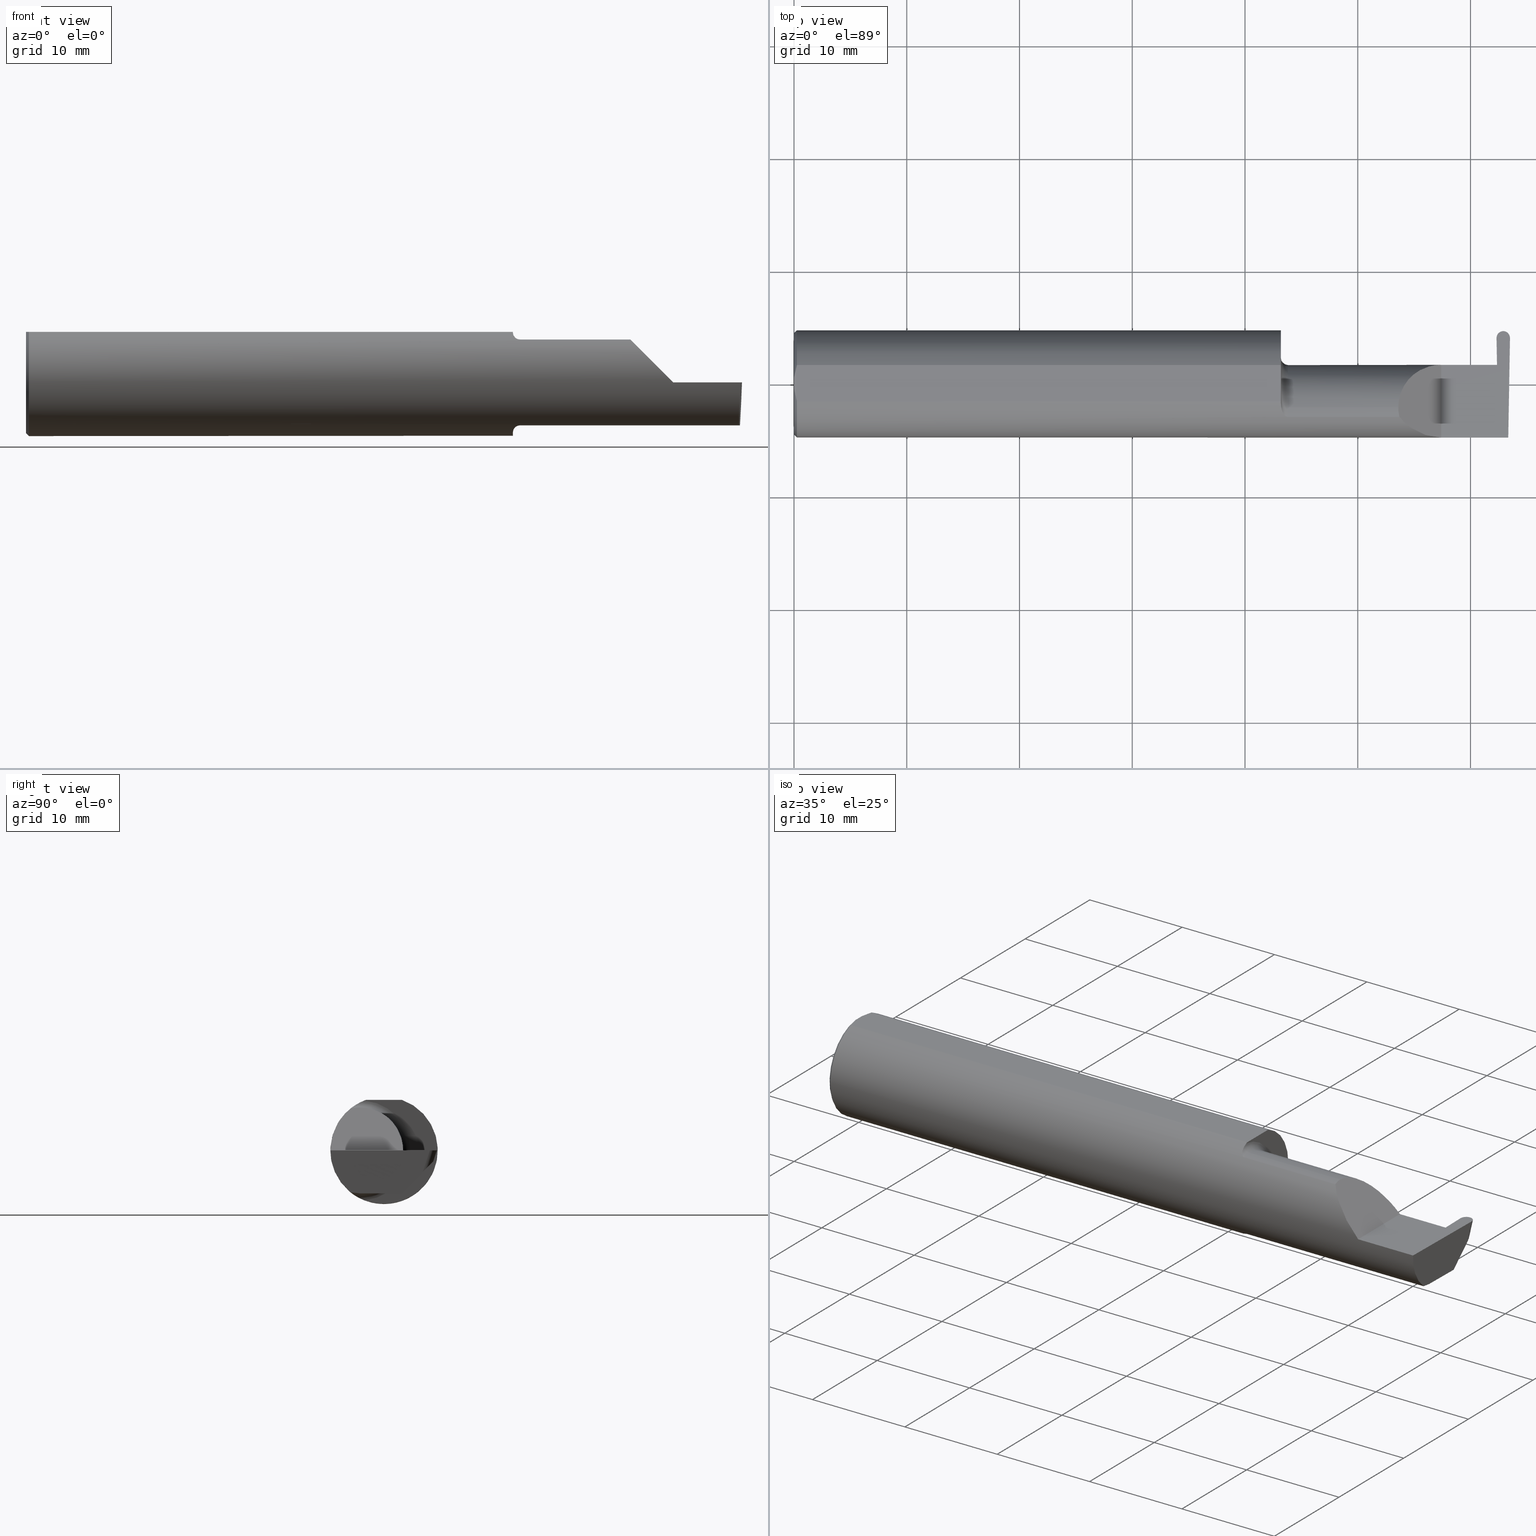
[diagram: canonical four-view strip — front | top / right | iso, engineering-drawing reading convention]
A machine part, canonical four-view strip (front | top / right | iso — engineering-drawing reading convention). The complete STEP part file that produces these views, byte-faithful:
ISO-10303-21;
HEADER;
FILE_DESCRIPTION (( 'STEP AP203' ),
    '1' );
FILE_NAME ('222107-GFR046-12.STEP',
    '2024-06-21T22:54:07',
    ( '' ),
    ( '' ),
    'SwSTEP 2.0',
    'SolidWorks 2022',
    '' );
FILE_SCHEMA (( 'CONFIG_CONTROL_DESIGN' ));
ENDSEC;

DATA;
#1 = ORIENTED_EDGE ( 'NONE', *, *, #51, .T. ) ;
#2 = LENGTH_MEASURE_WITH_UNIT ( LENGTH_MEASURE( 0.02539999999999999897 ), #815 );
#3 = B_SPLINE_CURVE_WITH_KNOTS ( 'NONE', 3,
 ( #626, #388, #646, #507 ),
 .UNSPECIFIED., .F., .F.,
 ( 4, 4 ),
 ( 0.001278539404338877245, 0.001694873732696222440 ),
 .UNSPECIFIED. ) ;
#4 = ORIENTED_EDGE ( 'NONE', *, *, #357, .T. ) ;
#5 = EDGE_CURVE ( 'NONE', #634, #728, #265, .T. ) ;
#6 = VERTEX_POINT ( 'NONE', #202 ) ;
#7 = CC_DESIGN_APPROVAL ( #727, ( #713 ) ) ;
#8 = EDGE_LOOP ( 'NONE', ( #609, #414, #549 ) ) ;
#9 = DIRECTION ( 'NONE',  ( 0.000000000000000000, 0.000000000000000000, 1.000000000000000000 ) ) ;
#10 = DIRECTION ( 'NONE',  ( 0.000000000000000000, 0.000000000000000000, -1.000000000000000000 ) ) ;
#11 = ORIENTED_EDGE ( 'NONE', *, *, #558, .T. ) ;
#12 = CARTESIAN_POINT ( 'NONE',  ( 2.459895087900160870, 0.06145200698433272296, -0.1488510445587935549 ) ) ;
#13 = CONICAL_SURFACE ( 'NONE', #816, 0.1773499999999999521, 0.7853981633974431720 ) ;
#14 =( BOUNDED_CURVE ( )  B_SPLINE_CURVE ( 3, ( #42, #156, #532, #283 ),
 .UNSPECIFIED., .F., .F. ) 
 B_SPLINE_CURVE_WITH_KNOTS ( ( 4, 4 ),
 ( 0.2128041086811296445, 1.107331509589577045 ),
 .UNSPECIFIED. ) 
 CURVE ( )  GEOMETRIC_REPRESENTATION_ITEM ( )  RATIONAL_B_SPLINE_CURVE ( ( 1.000000000000000000, 0.9344226172588803170, 0.9344226172588803170, 1.000000000000000000 ) ) 
 REPRESENTATION_ITEM ( '' )  );
#15 = CARTESIAN_POINT ( 'NONE',  ( 1.724999999999999867, -0.1172600179964006784, -0.1461167706989303650 ) ) ;
#16 = DIRECTION ( 'NONE',  ( -1.000000000000000000, -0.000000000000000000, -0.000000000000000000 ) ) ;
#17 = EDGE_CURVE ( 'NONE', #339, #361, #64, .T. ) ;
#18 = FACE_OUTER_BOUND ( 'NONE', #500, .T. ) ;
#19 = PLANE ( 'NONE',  #553 ) ;
#20 = VECTOR ( 'NONE', #766, 39.37007874015748143 ) ;
#21 = VERTEX_POINT ( 'NONE', #66 ) ;
#22 = CARTESIAN_POINT ( 'NONE',  ( 2.473071381531744883, 0.1327807391157157513, -0.08358957283776476122 ) ) ;
#23 = APPROVAL_STATUS ( 'not_yet_approved' ) ;
#24 = DIRECTION ( 'NONE',  ( -1.000000000000000000, -0.000000000000000000, -0.000000000000000000 ) ) ;
#25 = CC_DESIGN_DATE_AND_TIME_ASSIGNMENT ( #215, #97, ( #642 ) ) ;
#26 = AXIS2_PLACEMENT_3D ( 'NONE', #726, #95, #169 ) ;
#27 = CARTESIAN_POINT ( 'NONE',  ( 2.476480000000000459, 0.1722500154617881696, -0.03805303608136137439 ) ) ;
#28 = B_SPLINE_CURVE_WITH_KNOTS ( 'NONE', 3,
 ( #593, #614, #287, #32 ),
 .UNSPECIFIED., .F., .F.,
 ( 4, 4 ),
 ( 0.009771445421851331775, 0.01092787937989104369 ),
 .UNSPECIFIED. ) ;
#29 = VERTEX_POINT ( 'NONE', #349 ) ;
#30 = CARTESIAN_POINT ( 'NONE',  ( 2.490599447477928052, 0.1846499999999998420, -1.730980851401792408E-18 ) ) ;
#31 = LINE ( 'NONE', #337, #301 ) ;
#32 = CARTESIAN_POINT ( 'NONE',  ( 0.000000000000000000, -0.01880691362238934641, 0.1763499999999999235 ) ) ;
#33 = EDGE_CURVE ( 'NONE', #548, #312, #539, .T. ) ;
#34 = DIRECTION ( 'NONE',  ( 0.000000000000000000, -0.3090169943749481729, -0.9510565162951533091 ) ) ;
#35 = COORDINATED_UNIVERSAL_TIME_OFFSET ( 8, 0, .BEHIND. ) ;
#36 = CARTESIAN_POINT ( 'NONE',  ( 2.462360552522071089, 0.1846499999999998698, 1.730980851401795297E-18 ) ) ;
#37 = DIRECTION ( 'NONE',  ( 0.9993699743034455407, 0.001238639365660558185, 0.03546999060124557401 ) ) ;
#38 = CIRCLE ( 'NONE', #135, 0.1499999999999999944 ) ;
#39 = EDGE_CURVE ( 'NONE', #442, #152, #319, .T. ) ;
#40 = CARTESIAN_POINT ( 'NONE',  ( 0.005155213631852493573, 0.04890080824240055496, 0.1763499999999999235 ) ) ;
#41 = DATE_AND_TIME ( #346, #718 ) ;
#42 = CARTESIAN_POINT ( 'NONE',  ( 2.490040979592266890, -0.1172600179964006784, -0.1461167706989303650 ) ) ;
#43 = DIRECTION ( 'NONE',  ( -0.02596452850600340298, 0.7068683906002054540, 0.7068683906002135586 ) ) ;
#44 = CARTESIAN_POINT ( 'NONE',  ( 2.454977397848501219, 0.06628460753894979685, -0.01046347106162132459 ) ) ;
#45 = AXIS2_PLACEMENT_3D ( 'NONE', #96, #386, #288 ) ;
#46 = ORIENTED_EDGE ( 'NONE', *, *, #558, .F. ) ;
#47 = CARTESIAN_POINT ( 'NONE',  ( 1.724999999999999867, -0.08334999999999999354, 0.1749999999999999334 ) ) ;
#48 = ORIENTED_EDGE ( 'NONE', *, *, #128, .T. ) ;
#49 = DIRECTION ( 'NONE',  ( -1.000000000000000000, -0.000000000000000000, -0.000000000000000000 ) ) ;
#50 = VERTEX_POINT ( 'NONE', #282 ) ;
#51 = EDGE_CURVE ( 'NONE', #21, #361, #491, .T. ) ;
#52 = CARTESIAN_POINT ( 'NONE',  ( 2.260000000000000231, -0.2500000000000000555, 2.939152317953647352E-17 ) ) ;
#53 = ORIENTED_EDGE ( 'NONE', *, *, #709, .F. ) ;
#54 =( BOUNDED_CURVE ( )  B_SPLINE_CURVE ( 3, ( #284, #421, #662, #533 ),
 .UNSPECIFIED., .F., .F. ) 
 B_SPLINE_CURVE_WITH_KNOTS ( ( 4, 4 ),
 ( 0.000000000000000000, 1.570796326794896336 ),
 .UNSPECIFIED. ) 
 CURVE ( )  GEOMETRIC_REPRESENTATION_ITEM ( )  RATIONAL_B_SPLINE_CURVE ( ( 1.000000000000000000, 0.8047378541243650485, 0.8047378541243650485, 1.000000000000000000 ) ) 
 REPRESENTATION_ITEM ( '' )  );
#55 = CIRCLE ( 'NONE', #402, 0.02499999999999993894 ) ;
#56 = CIRCLE ( 'NONE', #258, 0.1773499999999999521 ) ;
#57 = VERTEX_POINT ( 'NONE', #783 ) ;
#58 = AXIS2_PLACEMENT_3D ( 'NONE', #583, #466, #763 ) ;
#59 = CIRCLE ( 'NONE', #91, 0.1873499999999999888 ) ;
#60 = ADVANCED_FACE ( 'NONE', ( #147 ), #813, .T. ) ;
#61 = DIRECTION ( 'NONE',  ( 0.000000000000000000, 0.000000000000000000, 1.000000000000000000 ) ) ;
#62 = ORIENTED_EDGE ( 'NONE', *, *, #742, .T. ) ;
#63 = DIRECTION ( 'NONE',  ( -1.000000000000000000, -0.000000000000000000, -0.000000000000000000 ) ) ;
#64 = LINE ( 'NONE', #748, #293 ) ;
#65 = ORIENTED_EDGE ( 'NONE', *, *, #428, .T. ) ;
#66 = CARTESIAN_POINT ( 'NONE',  ( 0.000000000000000000, 0.01880691362238934988, 0.1763499999999999235 ) ) ;
#67 = ORIENTED_EDGE ( 'NONE', *, *, #441, .T. ) ;
#68 = DIRECTION ( 'NONE',  ( 0.03490480639812536257, 0.000000000000000000, 0.9993906415863165194 ) ) ;
#69 = EDGE_CURVE ( 'NONE', #681, #21, #78, .T. ) ;
#70 = ORIENTED_EDGE ( 'NONE', *, *, #33, .T. ) ;
#71 = CARTESIAN_POINT ( 'NONE',  ( 0.000000000000000000, 0.000000000000000000, 0.000000000000000000 ) ) ;
#72 = CARTESIAN_POINT ( 'NONE',  ( 2.495446507120537838, 0.1069186461560726331, -0.1033844053870776880 ) ) ;
#73 = EDGE_CURVE ( 'NONE', #697, #814, #517, .T. ) ;
#74 =( GEOMETRIC_REPRESENTATION_CONTEXT ( 3 ) GLOBAL_UNCERTAINTY_ASSIGNED_CONTEXT ( ( #341 ) ) GLOBAL_UNIT_ASSIGNED_CONTEXT ( ( #384, #645, #750 ) ) REPRESENTATION_CONTEXT ( 'NONE', 'WORKASPACE' ) );
#75 = EDGE_LOOP ( 'NONE', ( #171, #242, #793, #741, #631, #254 ) ) ;
#76 = CARTESIAN_POINT ( 'NONE',  ( 2.498023799314527338, 0.1561213079040834895, -0.05418174363906625574 ) ) ;
#77 = VECTOR ( 'NONE', #619, 39.37007874015748854 ) ;
#78 = LINE ( 'NONE', #457, #802 ) ;
#79 = CARTESIAN_POINT ( 'NONE',  ( 2.733184360054361939, -0.08335000000000014619, -0.1500000000000000500 ) ) ;
#80 = CARTESIAN_POINT ( 'NONE',  ( 0.000000000000000000, 0.000000000000000000, -0.1773499999999999521 ) ) ;
#81 = CARTESIAN_POINT ( 'NONE',  ( 2.499980319257137484, 0.1597972350660649687, 0.000000000000000000 ) ) ;
#82 = COORDINATED_UNIVERSAL_TIME_OFFSET ( 8, 0, .BEHIND. ) ;
#83 = CARTESIAN_POINT ( 'NONE',  ( 2.113883229301068312, -0.1172600179964008171, 0.1461167706989301707 ) ) ;
#84 = AXIS2_PLACEMENT_3D ( 'NONE', #234, #464, #108 ) ;
#85 = DIRECTION ( 'NONE',  ( 0.000000000000000000, 0.000000000000000000, -1.000000000000000000 ) ) ;
#86 = ORIENTED_EDGE ( 'NONE', *, *, #100, .F. ) ;
#87 = CARTESIAN_POINT ( 'NONE',  ( 2.476759731742398163, 0.1846500000000000363, 0.000000000000000000 ) ) ;
#88 = LINE ( 'NONE', #351, #618 ) ;
#89 = FACE_OUTER_BOUND ( 'NONE', #485, .T. ) ;
#90 = ORIENTED_EDGE ( 'NONE', *, *, #687, .T. ) ;
#91 = AXIS2_PLACEMENT_3D ( 'NONE', #584, #328, #85 ) ;
#92 = DIRECTION ( 'NONE',  ( -0.03858184836401777618, -0.3087869137032490663, -0.9503484007996426675 ) ) ;
#93 = APPROVAL_ROLE ( '' ) ;
#94 = CARTESIAN_POINT ( 'NONE',  ( 1.701062863587533558, -0.08334999999998819742, 0.1677879614275170628 ) ) ;
#95 = DIRECTION ( 'NONE',  ( -1.000000000000000000, -0.000000000000000000, -0.000000000000000000 ) ) ;
#96 = CARTESIAN_POINT ( 'NONE',  ( 0.000000000000000000, 0.000000000000000000, 0.000000000000000000 ) ) ;
#97 = DATE_TIME_ROLE ( 'classification_date' ) ;
#98 = LINE ( 'NONE', #475, #620 ) ;
#99 = DIRECTION ( 'NONE',  ( 0.000000000000000000, 0.000000000000000000, 1.000000000000000000 ) ) ;
#100 = EDGE_CURVE ( 'NONE', #527, #182, #710, .T. ) ;
#101 = DIRECTION ( 'NONE',  ( 0.000000000000000000, -0.7071067811865434649, -0.7071067811865515695 ) ) ;
#102 = DIRECTION ( 'NONE',  ( 1.000000000000000000, -0.000000000000000000, -0.000000000000000000 ) ) ;
#103 = CARTESIAN_POINT ( 'NONE',  ( 2.447424076630286827, 0.06652820251299110255, -0.003487823687207092585 ) ) ;
#104 = CARTESIAN_POINT ( 'NONE',  ( 2.454936200685473136, 0.1561213079040838225, -0.05418174363906586022 ) ) ;
#105 = ADVANCED_FACE ( 'NONE', ( #591 ), #747, .F. ) ;
#106 = AXIS2_PLACEMENT_3D ( 'NONE', #680, #740, #101 ) ;
#107 = EDGE_LOOP ( 'NONE', ( #800, #789, #627, #302, #679, #752 ) ) ;
#108 = DIRECTION ( 'NONE',  ( 0.03490480639812536257, 0.000000000000000000, -0.9993906415863165194 ) ) ;
#109 = DIRECTION ( 'NONE',  ( -0.03858184836401846313, 0.3087869137032490108, 0.9503484007996424454 ) ) ;
#110 = ORIENTED_EDGE ( 'NONE', *, *, #117, .T. ) ;
#111 = ORIENTED_EDGE ( 'NONE', *, *, #594, .F. ) ;
#112 = CIRCLE ( 'NONE', #270, 0.1773499999999999521 ) ;
#113 = ORIENTED_EDGE ( 'NONE', *, *, #39, .T. ) ;
#114 = CARTESIAN_POINT ( 'NONE',  ( 2.460012367653796606, -0.0002709026822648819086, -0.1500000000000000222 ) ) ;
#115 = VERTEX_POINT ( 'NONE', #329 ) ;
#116 = ORGANIZATION ( 'UNSPECIFIED', 'UNSPECIFIED', '' ) ;
#117 = EDGE_CURVE ( 'NONE', #152, #245, #390, .T. ) ;
#118 = CARTESIAN_POINT ( 'NONE',  ( 1.699999999999998623, 0.06628460753895903945, -0.01046347106182767515 ) ) ;
#119 = ORIENTED_EDGE ( 'NONE', *, *, #5, .F. ) ;
#120 = VECTOR ( 'NONE', #788, 39.37007874015747433 ) ;
#121 = CARTESIAN_POINT ( 'NONE',  ( 2.088979999999999837, -0.1172600179964006784, -0.1461167706989303650 ) ) ;
#122 = ORIENTED_EDGE ( 'NONE', *, *, #529, .T. ) ;
#123 = VECTOR ( 'NONE', #259, 39.37007874015748143 ) ;
#124 = ORIENTED_EDGE ( 'NONE', *, *, #250, .F. ) ;
#125 = B_SPLINE_CURVE_WITH_KNOTS ( 'NONE', 3,
 ( #94, #221, #648, #670, #291, #470, #720, #588 ),
 .UNSPECIFIED., .F., .F.,
 ( 4, 2, 2, 4 ),
 ( 0.0004561457252213466573, 0.001084815134961801542, 0.001399149839832030014, 0.001713484544702258486 ),
 .UNSPECIFIED. ) ;
#126 = ADVANCED_FACE ( 'NONE', ( #706 ), #214, .T. ) ;
#127 = CIRCLE ( 'NONE', #374, 0.1499999999999999944 ) ;
#128 = EDGE_CURVE ( 'NONE', #728, #400, #647, .T. ) ;
#129 = ORIENTED_EDGE ( 'NONE', *, *, #117, .F. ) ;
#130 = VERTEX_POINT ( 'NONE', #345 ) ;
#131 = B_SPLINE_CURVE_WITH_KNOTS ( 'NONE', 3,
 ( #15, #269, #226, #334, #285, #140, #530, #586, #275, #210, #615, #557 ),
 .UNSPECIFIED., .F., .F.,
 ( 4, 2, 2, 2, 2, 4 ),
 ( 1.967976973658592312E-07, 0.0001599896235275545693, 0.0003197824493577432442, 0.0006393681010181212444, 0.0009589537526784992988, 0.001278539404338877245 ),
 .UNSPECIFIED. ) ;
#132 = ADVANCED_FACE ( 'NONE', ( #219 ), #663, .F. ) ;
#133 = CARTESIAN_POINT ( 'NONE',  ( 0.000000000000000000, 0.000000000000000000, 0.000000000000000000 ) ) ;
#134 = ORIENTED_EDGE ( 'NONE', *, *, #438, .T. ) ;
#135 = AXIS2_PLACEMENT_3D ( 'NONE', #411, #665, #99 ) ;
#136 = DIRECTION ( 'NONE',  ( -0.000000000000000000, 1.000000000000000000, 1.224646799147353207E-16 ) ) ;
#137 = LINE ( 'NONE', #121, #123 ) ;
#138 = EDGE_CURVE ( 'NONE', #590, #367, #131, .T. ) ;
#139 = CIRCLE ( 'NONE', #248, 0.1873499999999999888 ) ;
#140 = CARTESIAN_POINT ( 'NONE',  ( 1.711340974786206282, -0.1102890168945987320, -0.1514792188789464700 ) ) ;
#141 = CARTESIAN_POINT ( 'NONE',  ( 0.01000000000000013205, 0.06325108694718235836, 0.1763499999999999235 ) ) ;
#142 = DIRECTION ( 'NONE',  ( -1.000000000000000000, -0.000000000000000000, -0.000000000000000000 ) ) ;
#143 = CARTESIAN_POINT ( 'NONE',  ( 2.113883229301068312, -0.1172600179964008171, 0.1461167706989301707 ) ) ;
#144 = DIRECTION ( 'NONE',  ( -0.03549161113179515048, 0.03487750912278131388, 0.9987611851171729338 ) ) ;
#145 = PRODUCT_DEFINITION_SHAPE ( 'NONE', 'NONE',  #713 ) ;
#146 = ORIENTED_EDGE ( 'NONE', *, *, #69, .F. ) ;
#147 = FACE_OUTER_BOUND ( 'NONE', #309, .T. ) ;
#148 = EDGE_CURVE ( 'NONE', #29, #115, #805, .T. ) ;
#149 = CARTESIAN_POINT ( 'NONE',  ( 2.476200268257601422, 0.1846500000000000363, 0.000000000000000000 ) ) ;
#150 = CARTESIAN_POINT ( 'NONE',  ( 2.260000000000000231, -0.2500000000000000555, 2.939152317953647352E-17 ) ) ;
#151 = ORIENTED_EDGE ( 'NONE', *, *, #438, .F. ) ;
#152 = VERTEX_POINT ( 'NONE', #484 ) ;
#153 = CARTESIAN_POINT ( 'NONE',  ( 2.454605571778825102, 0.06664999999999998703, 0.000000000000000000 ) ) ;
#154 = CALENDAR_DATE ( 2024, 21, 6 ) ;
#155 = EDGE_CURVE ( 'NONE', #503, #6, #246, .T. ) ;
#156 = CARTESIAN_POINT ( 'NONE',  ( 2.490517704308097713, -0.1623470442677540926, -0.1099340280425338268 ) ) ;
#157 = LOCAL_TIME ( 15, 54, 7.000000000000000000, #543 ) ;
#158 = DIRECTION ( 'NONE',  ( -0.7071067811865441310, 0.000000000000000000, -0.7071067811865510144 ) ) ;
#159 = VECTOR ( 'NONE', #92, 39.37007874015748143 ) ;
#160 = DIRECTION ( 'NONE',  ( 1.000000000000000000, 9.674096982053045718E-15, -0.000000000000000000 ) ) ;
#161 = APPROVAL_STATUS ( 'not_yet_approved' ) ;
#162 = CARTESIAN_POINT ( 'NONE',  ( 1.699999999999999956, 0.1873499999999998500, 0.1763499999999999235 ) ) ;
#163 = DIRECTION ( 'NONE',  ( 0.000000000000000000, 0.000000000000000000, -1.000000000000000000 ) ) ;
#164 = ADVANCED_FACE ( 'NONE', ( #426 ), #237, .F. ) ;
#165 = DIRECTION ( 'NONE',  ( 0.03858184836401847007, -0.3087869137032490108, -0.9503484007996424454 ) ) ;
#166 = PERSON_AND_ORGANIZATION ( #368, #116 ) ;
#167 = CARTESIAN_POINT ( 'NONE',  ( 2.454605571778825102, 0.06664999999999998703, 0.000000000000000000 ) ) ;
#168 = EDGE_LOOP ( 'NONE', ( #801, #624, #693, #70, #11, #811 ) ) ;
#169 = DIRECTION ( 'NONE',  ( 0.000000000000000000, 0.000000000000000000, 1.000000000000000000 ) ) ;
#170 = EDGE_CURVE ( 'NONE', #812, #251, #723, .T. ) ;
#171 = ORIENTED_EDGE ( 'NONE', *, *, #417, .F. ) ;
#172 = CARTESIAN_POINT ( 'NONE',  ( 2.490571174359867967, -0.07911517109126292580, -0.1500000000000000500 ) ) ;
#173 = ORIENTED_EDGE ( 'NONE', *, *, #452, .T. ) ;
#174 = EDGE_LOOP ( 'NONE', ( #616, #306, #111, #173, #756 ) ) ;
#175 = VERTEX_POINT ( 'NONE', #729 ) ;
#176 = LINE ( 'NONE', #181, #315 ) ;
#177 = ORIENTED_EDGE ( 'NONE', *, *, #33, .F. ) ;
#178 = CARTESIAN_POINT ( 'NONE',  ( 2.460115337567889249, -0.08334999999999999354, -0.1500000000000000222 ) ) ;
#179 = ORIENTED_EDGE ( 'NONE', *, *, #303, .F. ) ;
#180 = ORIENTED_EDGE ( 'NONE', *, *, #362, .F. ) ;
#181 = CARTESIAN_POINT ( 'NONE',  ( 2.472512750841366902, 0.2141627675440266054, 0.09083095880673042188 ) ) ;
#182 = VERTEX_POINT ( 'NONE', #360 ) ;
#183 = ADVANCED_FACE ( 'NONE', ( #300 ), #366, .T. ) ;
#184 = APPROVAL_PERSON_ORGANIZATION ( #587, #674, #93 ) ;
#185 = DIRECTION ( 'NONE',  ( 0.000000000000000000, 0.000000000000000000, -1.000000000000000000 ) ) ;
#186 = ORIENTED_EDGE ( 'NONE', *, *, #39, .F. ) ;
#187 = ORIENTED_EDGE ( 'NONE', *, *, #709, .T. ) ;
#188 = ORIENTED_EDGE ( 'NONE', *, *, #798, .T. ) ;
#189 = VECTOR ( 'NONE', #144, 39.37007874015748143 ) ;
#190 = EDGE_CURVE ( 'NONE', #690, #490, #678, .T. ) ;
#191 = ORIENTED_EDGE ( 'NONE', *, *, #280, .F. ) ;
#192 = ORIENTED_EDGE ( 'NONE', *, *, #504, .F. ) ;
#193 = EDGE_CURVE ( 'NONE', #50, #728, #422, .T. ) ;
#194 = CARTESIAN_POINT ( 'NONE',  ( 0.000000000000000000, 0.000000000000000000, 0.000000000000000000 ) ) ;
#195 = AXIS2_PLACEMENT_3D ( 'NONE', #243, #49, #623 ) ;
#196 = DIRECTION ( 'NONE',  ( -1.000000000000000000, -0.000000000000000000, -0.000000000000000000 ) ) ;
#197 = APPLICATION_CONTEXT ( 'configuration controlled 3d designs of mechanical parts and assemblies' ) ;
#198 = ORIENTED_EDGE ( 'NONE', *, *, #428, .F. ) ;
#199 = CARTESIAN_POINT ( 'NONE',  ( 1.699999999999999956, 0.06664999999999998703, 9.797174393178831081E-17 ) ) ;
#200 = EDGE_CURVE ( 'NONE', #442, #492, #737, .T. ) ;
#201 = DIRECTION ( 'NONE',  ( 1.000000000000000000, 0.000000000000000000, 0.000000000000000000 ) ) ;
#202 = CARTESIAN_POINT ( 'NONE',  ( 2.447180481656269446, 0.06628460753897345847, -0.01046347106162128122 ) ) ;
#203 = PLANE ( 'NONE',  #660 ) ;
#204 = CARTESIAN_POINT ( 'NONE',  ( 0.001616639753276021213, 0.03405189565400638246, 0.1763499999999999235 ) ) ;
#205 = LINE ( 'NONE', #199, #508 ) ;
#206 = CARTESIAN_POINT ( 'NONE',  ( 0.01000000000000013205, 0.000000000000000000, 0.000000000000000000 ) ) ;
#207 = DIRECTION ( 'NONE',  ( -1.224646799147353947E-16, 0.000000000000000000, -1.000000000000000000 ) ) ;
#208 = VECTOR ( 'NONE', #412, 39.37007874015748854 ) ;
#209 = EDGE_CURVE ( 'NONE', #676, #442, #446, .T. ) ;
#210 = CARTESIAN_POINT ( 'NONE',  ( 1.702380638915944600, -0.09060738690120614947, -0.1640321561807271122 ) ) ;
#211 = DIRECTION ( 'NONE',  ( -0.03701368837992554534, 0.7066222423871548752, 0.7066222423871629799 ) ) ;
#212 = CARTESIAN_POINT ( 'NONE',  ( 2.447180481656269446, 0.06628460753897345847, -0.01046347106162128122 ) ) ;
#213 = EDGE_CURVE ( 'NONE', #245, #685, #176, .T. ) ;
#214 = CYLINDRICAL_SURFACE ( 'NONE', #224, 0.02350000000000002087 ) ;
#215 = DATE_AND_TIME ( #413, #313 ) ;
#216 = DIRECTION ( 'NONE',  ( -1.000000000000000000, -0.000000000000000000, -0.000000000000000000 ) ) ;
#217 = DIRECTION ( 'NONE',  ( -1.000000000000000000, -0.000000000000000000, -0.000000000000000000 ) ) ;
#218 = AXIS2_PLACEMENT_3D ( 'NONE', #167, #597, #661 ) ;
#219 = FACE_OUTER_BOUND ( 'NONE', #498, .T. ) ;
#220 = APPLICATION_PROTOCOL_DEFINITION ( 'international standard', 'config_control_design', 1994, #782 ) ;
#221 = CARTESIAN_POINT ( 'NONE',  ( 1.702158970028690321, -0.09067355718685707333, 0.1641499263364886718 ) ) ;
#222 = CARTESIAN_POINT ( 'NONE',  ( 2.447545874117295739, 0.06664999999999991764, 0.000000000000000000 ) ) ;
#223 = CIRCLE ( 'NONE', #488, 0.1873499999999999888 ) ;
#224 = AXIS2_PLACEMENT_3D ( 'NONE', #22, #401, #657 ) ;
#225 = DESIGN_CONTEXT ( 'detailed design', #782, 'design' ) ;
#226 = CARTESIAN_POINT ( 'NONE',  ( 1.720804171164107332, -0.1167508198888949772, -0.1465276362740037253 ) ) ;
#227 = APPROVAL_ROLE ( '' ) ;
#228 = DIRECTION ( 'NONE',  ( 0.000000000000000000, 0.000000000000000000, 1.000000000000000000 ) ) ;
#229 = EDGE_CURVE ( 'NONE', #812, #57, #622, .T. ) ;
#230 = DIRECTION ( 'NONE',  ( 0.03547001781079399396, 0.000000000000000000, -0.9993707409347654114 ) ) ;
#231 = DIRECTION ( 'NONE',  ( -1.000000000000000000, -0.000000000000000000, -0.000000000000000000 ) ) ;
#232 = ORIENTED_EDGE ( 'NONE', *, *, #742, .F. ) ;
#233 = ORIENTED_EDGE ( 'NONE', *, *, #357, .F. ) ;
#234 = CARTESIAN_POINT ( 'NONE',  ( 2.452963582209922055, 0.1607195194005952010, 0.000000000000000000 ) ) ;
#235 = VECTOR ( 'NONE', #344, 39.37007874015748143 ) ;
#236 = ORIENTED_EDGE ( 'NONE', *, *, #423, .F. ) ;
#237 = PLANE ( 'NONE',  #106 ) ;
#238 = VERTEX_POINT ( 'NONE', #489 ) ;
#239 = CARTESIAN_POINT ( 'NONE',  ( 2.202189699843948745, -0.1873500000000000443, 0.05781030015605096578 ) ) ;
#240 = CARTESIAN_POINT ( 'NONE',  ( 0.01000000000000013205, 0.000000000000000000, 0.000000000000000000 ) ) ;
#241 = ORIENTED_EDGE ( 'NONE', *, *, #666, .T. ) ;
#242 = ORIENTED_EDGE ( 'NONE', *, *, #209, .T. ) ;
#243 = CARTESIAN_POINT ( 'NONE',  ( 1.699999999999999956, -0.08334999999999999354, 0.000000000000000000 ) ) ;
#244 = EDGE_CURVE ( 'NONE', #400, #503, #610, .T. ) ;
#245 = VERTEX_POINT ( 'NONE', #555 ) ;
#246 = LINE ( 'NONE', #118, #355 ) ;
#247 = ORIENTED_EDGE ( 'NONE', *, *, #155, .T. ) ;
#248 = AXIS2_PLACEMENT_3D ( 'NONE', #206, #655, #786 ) ;
#249 = CARTESIAN_POINT ( 'NONE',  ( 2.490145048687840479, -0.1061291577212409437, -0.1486999626928446061 ) ) ;
#250 = EDGE_CURVE ( 'NONE', #490, #130, #575, .T. ) ;
#251 = VERTEX_POINT ( 'NONE', #684 ) ;
#252 = ORIENTED_EDGE ( 'NONE', *, *, #768, .F. ) ;
#253 = DIRECTION ( 'NONE',  ( 1.000000000000000000, 0.000000000000000000, 0.000000000000000000 ) ) ;
#254 = ORIENTED_EDGE ( 'NONE', *, *, #193, .F. ) ;
#255 = APPROVAL ( #161, 'UNSPECIFIED' ) ;
#256 = EDGE_LOOP ( 'NONE', ( #233, #241, #495, #630, #232, #659, #177, #552, #427, #792, #579, #807, #179, #481, #437 ) ) ;
#257 = EDGE_LOOP ( 'NONE', ( #476, #759, #577, #53, #122, #188, #383, #570 ) ) ;
#258 = AXIS2_PLACEMENT_3D ( 'NONE', #415, #216, #463 ) ;
#259 = DIRECTION ( 'NONE',  ( -1.000000000000000000, -0.000000000000000000, -0.000000000000000000 ) ) ;
#260 = EDGE_CURVE ( 'NONE', #548, #561, #755, .T. ) ;
#261 = VERTEX_POINT ( 'NONE', #297 ) ;
#262 = DIRECTION ( 'NONE',  ( 0.000000000000000000, 0.000000000000000000, 1.000000000000000000 ) ) ;
#263 = AXIS2_PLACEMENT_3D ( 'NONE', #770, #595, #34 ) ;
#264 = CARTESIAN_POINT ( 'NONE',  ( 0.000000000000000000, 0.000000000000000000, 0.000000000000000000 ) ) ;
#265 =( BOUNDED_CURVE ( )  B_SPLINE_CURVE ( 3, ( #701, #249, #371, #499 ),
 .UNSPECIFIED., .F., .F. ) 
 B_SPLINE_CURVE_WITH_KNOTS ( ( 4, 4 ),
 ( 0.2354267821558756746, 0.4634648172053189019 ),
 .UNSPECIFIED. ) 
 CURVE ( )  GEOMETRIC_REPRESENTATION_ITEM ( )  RATIONAL_B_SPLINE_CURVE ( ( 1.000000000000000000, 0.9956712472009929815, 0.9956712472009929815, 1.000000000000000000 ) ) 
 REPRESENTATION_ITEM ( '' )  );
#266 = ORIENTED_EDGE ( 'NONE', *, *, #452, .F. ) ;
#267 = CARTESIAN_POINT ( 'NONE',  ( 0.01000000000000013205, -0.06325108694718235836, 0.1763499999999999235 ) ) ;
#268 = CYLINDRICAL_SURFACE ( 'NONE', #305, 0.1499999999999999944 ) ;
#269 = CARTESIAN_POINT ( 'NONE',  ( 1.722868998470238333, -0.1172600179964006922, -0.1461167706989302539 ) ) ;
#270 = AXIS2_PLACEMENT_3D ( 'NONE', #264, #217, #163 ) ;
#271 = CYLINDRICAL_SURFACE ( 'NONE', #573, 0.02350000000000000352 ) ;
#272 = ADVANCED_FACE ( 'NONE', ( #363 ), #510, .F. ) ;
#273 = DIRECTION ( 'NONE',  ( -1.000000000000000000, -0.000000000000000000, -0.000000000000000000 ) ) ;
#274 = ORIENTED_EDGE ( 'NONE', *, *, #244, .T. ) ;
#275 = CARTESIAN_POINT ( 'NONE',  ( 1.704475235432781455, -0.09757364237049408195, -0.1599863467203317680 ) ) ;
#276 = CALENDAR_DATE ( 2024, 21, 6 ) ;
#277 = VECTOR ( 'NONE', #43, 39.37007874015748854 ) ;
#278 = DIRECTION ( 'NONE',  ( 0.7071067811865511255, 0.000000000000000000, -0.7071067811865439090 ) ) ;
#279 = CYLINDRICAL_SURFACE ( 'NONE', #26, 0.1499999999999999944 ) ;
#280 = EDGE_CURVE ( 'NONE', #130, #676, #405, .T. ) ;
#281 = ORIENTED_EDGE ( 'NONE', *, *, #229, .F. ) ;
#282 = CARTESIAN_POINT ( 'NONE',  ( 2.493004728488126265, 0.06030305154315079852, -0.1500000000000000500 ) ) ;
#283 = CARTESIAN_POINT ( 'NONE',  ( 2.493920841729410753, -0.1873499999999999888, 0.000000000000000000 ) ) ;
#284 = CARTESIAN_POINT ( 'NONE',  ( 2.109999999999998987, -0.08334999999999999354, 0.1499999999999999944 ) ) ;
#285 = CARTESIAN_POINT ( 'NONE',  ( 1.715551048069661411, -0.1140002044565611578, -0.1486821290834929865 ) ) ;
#286 = PERSON_AND_ORGANIZATION_ROLE ( 'classification_officer' ) ;
#287 = CARTESIAN_POINT ( 'NONE',  ( 0.001595548104417008695, -0.03385300050298640367, 0.1763499999999999235 ) ) ;
#288 = DIRECTION ( 'NONE',  ( 0.000000000000000000, 0.000000000000000000, -1.000000000000000000 ) ) ;
#289 = ADVANCED_FACE ( 'NONE', ( #338 ), #268, .T. ) ;
#290 = DATE_AND_TIME ( #276, #808 ) ;
#291 = CARTESIAN_POINT ( 'NONE',  ( 1.711319809340845488, -0.1102629523538396217, 0.1514982751257169802 ) ) ;
#292 = CARTESIAN_POINT ( 'NONE',  ( 2.454977397848501219, 0.06628460753894979685, -0.01046347106162132459 ) ) ;
#293 = VECTOR ( 'NONE', #372, 39.37007874015748143 ) ;
#294 = ORIENTED_EDGE ( 'NONE', *, *, #190, .F. ) ;
#295 = CARTESIAN_POINT ( 'NONE',  ( 2.460605367617270112, -2.397261968859201176, -0.08300305144819924985 ) ) ;
#296 = ORIENTED_EDGE ( 'NONE', *, *, #768, .T. ) ;
#297 = CARTESIAN_POINT ( 'NONE',  ( 1.724999999999999867, -0.08334999999999999354, 0.1499999999999999944 ) ) ;
#298 = ORIENTED_EDGE ( 'NONE', *, *, #303, .T. ) ;
#299 = CARTESIAN_POINT ( 'NONE',  ( 2.260000000000000231, -0.1873499999999999888, 2.939152317953647352E-17 ) ) ;
#300 = FACE_OUTER_BOUND ( 'NONE', #325, .T. ) ;
#301 = VECTOR ( 'NONE', #211, 39.37007874015748854 ) ;
#302 = ORIENTED_EDGE ( 'NONE', *, *, #417, .T. ) ;
#303 = EDGE_CURVE ( 'NONE', #561, #339, #59, .T. ) ;
#304 = CARTESIAN_POINT ( 'NONE',  ( 1.724999999999999867, -0.08334999999999999354, 0.000000000000000000 ) ) ;
#305 = AXIS2_PLACEMENT_3D ( 'NONE', #333, #273, #370 ) ;
#306 = ORIENTED_EDGE ( 'NONE', *, *, #190, .T. ) ;
#307 = CARTESIAN_POINT ( 'NONE',  ( 2.452968669080377140, 0.1598853660763216722, 0.0002712393593816663493 ) ) ;
#308 = ADVANCED_FACE ( 'NONE', ( #518 ), #19, .F. ) ;
#309 = EDGE_LOOP ( 'NONE', ( #420, #317, #1, #806 ) ) ;
#310 = CARTESIAN_POINT ( 'NONE',  ( 1.699999999999999956, 0.1873499999999999055, 0.000000000000000000 ) ) ;
#311 = ORIENTED_EDGE ( 'NONE', *, *, #571, .F. ) ;
#312 = VERTEX_POINT ( 'NONE', #323 ) ;
#313 = LOCAL_TIME ( 15, 54, 7.000000000000000000, #531 ) ;
#314 = EDGE_LOOP ( 'NONE', ( #46, #479, #134 ) ) ;
#315 = VECTOR ( 'NONE', #109, 39.37007874015748854 ) ;
#316 = CARTESIAN_POINT ( 'NONE',  ( 2.490497255146305822, -0.08335000000000014619, -0.1500000000000000500 ) ) ;
#317 = ORIENTED_EDGE ( 'NONE', *, *, #687, .F. ) ;
#318 = DIRECTION ( 'NONE',  ( -0.001239419280281356568, 0.9999992319196288060, 0.000000000000000000 ) ) ;
#319 =( BOUNDED_CURVE ( )  B_SPLINE_CURVE ( 3, ( #81, #652, #30, #87 ),
 .UNSPECIFIED., .F., .F. ) 
 B_SPLINE_CURVE_WITH_KNOTS ( ( 4, 4 ),
 ( 1.683182027770901534, 3.259781963246008996 ),
 .UNSPECIFIED. ) 
 CURVE ( )  GEOMETRIC_REPRESENTATION_ITEM ( )  RATIONAL_B_SPLINE_CURVE ( ( 1.000000000000000000, 0.8033679476376978101, 0.8033679476376978101, 1.000000000000000000 ) ) 
 REPRESENTATION_ITEM ( '' )  );
#320 = EDGE_LOOP ( 'NONE', ( #236, #559, #281, #568 ) ) ;
#321 = FACE_OUTER_BOUND ( 'NONE', #314, .T. ) ;
#322 = CIRCLE ( 'NONE', #683, 0.1499999999999999944 ) ;
#323 = CARTESIAN_POINT ( 'NONE',  ( 1.701062863587533558, -0.08334999999998819742, 0.1677879614275170628 ) ) ;
#324 = ADVANCED_FACE ( 'NONE', ( #767 ), #203, .F. ) ;
#325 = EDGE_LOOP ( 'NONE', ( #612, #736, #796, #431, #146, #735 ) ) ;
#326 = DIRECTION ( 'NONE',  ( 1.000000000000000000, 0.000000000000000000, 0.000000000000000000 ) ) ;
#327 = VERTEX_POINT ( 'NONE', #12 ) ;
#328 = DIRECTION ( 'NONE',  ( 1.000000000000000000, 0.000000000000000000, 0.000000000000000000 ) ) ;
#329 = CARTESIAN_POINT ( 'NONE',  ( 2.260000000000000231, 0.06664999999999998703, 9.797174393178831081E-17 ) ) ;
#330 = EDGE_CURVE ( 'NONE', #251, #548, #223, .T. ) ;
#331 = PLANE ( 'NONE',  #497 ) ;
#332 = ORIENTED_EDGE ( 'NONE', *, *, #148, .F. ) ;
#333 = CARTESIAN_POINT ( 'NONE',  ( 1.699999999999999956, -0.08334999999999999354, 0.000000000000000000 ) ) ;
#334 = CARTESIAN_POINT ( 'NONE',  ( 1.717163414264744281, -0.1151183835841406849, -0.1478135984872520625 ) ) ;
#335 = PERSON_AND_ORGANIZATION_ROLE ( 'creator' ) ;
#336 = EDGE_CURVE ( 'NONE', #492, #29, #515, .T. ) ;
#337 = CARTESIAN_POINT ( 'NONE',  ( 2.450725024758243720, 0.2365161755066116367, 0.02621312396346279702 ) ) ;
#338 = FACE_OUTER_BOUND ( 'NONE', #544, .T. ) ;
#339 = VERTEX_POINT ( 'NONE', #385 ) ;
#340 = PRODUCT ( '222107-GFR046-12', '222107-GFR046-12', '', ( #502 ) ) ;
#341 = UNCERTAINTY_MEASURE_WITH_UNIT (LENGTH_MEASURE( 1.000000000000000082E-05 ), #384, 'distance_accuracy_value', 'NONE');
#342 = CARTESIAN_POINT ( 'NONE',  ( 1.699999999999999289, -0.07360907839729502466, 0.1723706084642000480 ) ) ;
#343 = CARTESIAN_POINT ( 'NONE',  ( 2.452725869110807366, 0.1743380937279881138, 2.910889271442055903E-18 ) ) ;
#344 = DIRECTION ( 'NONE',  ( -0.03549161113179515048, 0.03487750912278131388, 0.9987611851171729338 ) ) ;
#345 = CARTESIAN_POINT ( 'NONE',  ( 2.476480000000000459, 0.1722500154617881696, -0.03805303608136137439 ) ) ;
#346 = CALENDAR_DATE ( 2024, 21, 6 ) ;
#347 = DIRECTION ( 'NONE',  ( -0.03858184836401847007, 0.3087869137032490663, 0.9503484007996425564 ) ) ;
#348 = CARTESIAN_POINT ( 'NONE',  ( 2.476480000000000015, 0.1790328857325878542, -0.01728770010724656539 ) ) ;
#349 = CARTESIAN_POINT ( 'NONE',  ( 2.260000000000000231, -0.1873499999999999888, 2.939152317953647352E-17 ) ) ;
#350 = DATE_AND_TIME ( #154, #157 ) ;
#351 = CARTESIAN_POINT ( 'NONE',  ( -0.001039370078739994957, 0.1846500000000000363, 0.000000000000000000 ) ) ;
#352 = PLANE ( 'NONE',  #650 ) ;
#353 = APPROVAL_PERSON_ORGANIZATION ( #658, #727, #227 ) ;
#354 = DIRECTION ( 'NONE',  ( 0.000000000000000000, 0.000000000000000000, -1.000000000000000000 ) ) ;
#355 = VECTOR ( 'NONE', #231, 39.37007874015748143 ) ;
#356 = CARTESIAN_POINT ( 'NONE',  ( 2.463296071009176913, 0.1711396766916343237, -0.03916337485151522718 ) ) ;
#357 = EDGE_CURVE ( 'NONE', #634, #590, #137, .T. ) ;
#358 = ORIENTED_EDGE ( 'NONE', *, *, #213, .T. ) ;
#359 = FACE_OUTER_BOUND ( 'NONE', #174, .T. ) ;
#360 = CARTESIAN_POINT ( 'NONE',  ( 2.454605571778825102, 0.06664999999999998703, 0.000000000000000000 ) ) ;
#361 = VERTEX_POINT ( 'NONE', #141 ) ;
#362 = EDGE_CURVE ( 'NONE', #503, #182, #744, .T. ) ;
#363 = FACE_OUTER_BOUND ( 'NONE', #8, .T. ) ;
#364 = ORIENTED_EDGE ( 'NONE', *, *, #73, .T. ) ;
#365 = AXIS2_PLACEMENT_3D ( 'NONE', #493, #795, #734 ) ;
#366 = PLANE ( 'NONE',  #365 ) ;
#367 = VERTEX_POINT ( 'NONE', #641 ) ;
#368 = PERSON ( 'UNSPECIFIED', 'UNSPECIFIED', 'UNSPECIFIED', ('UNSPECIFIED'), ('UNSPECIFIED'), ('UNSPECIFIED') ) ;
#369 = EDGE_CURVE ( 'NONE', #367, #561, #3, .T. ) ;
#370 = DIRECTION ( 'NONE',  ( 0.000000000000000000, 0.000000000000000000, 1.000000000000000000 ) ) ;
#371 = CARTESIAN_POINT ( 'NONE',  ( 2.490297801769516539, -0.09477667630339427218, -0.1499999999999999944 ) ) ;
#372 = DIRECTION ( 'NONE',  ( -1.000000000000000000, -0.000000000000000000, -0.000000000000000000 ) ) ;
#373 = APPLICATION_PROTOCOL_DEFINITION ( 'international standard', 'config_control_design', 1994, #197 ) ;
#374 = AXIS2_PLACEMENT_3D ( 'NONE', #781, #528, #416 ) ;
#375 = VERTEX_POINT ( 'NONE', #80 ) ;
#376 = ADVANCED_FACE ( 'NONE', ( #393 ), #649, .T. ) ;
#377 = ORIENTED_EDGE ( 'NONE', *, *, #529, .F. ) ;
#378 =( BOUNDED_CURVE ( )  B_SPLINE_CURVE ( 3, ( #677, #348, #656, #722 ),
 .UNSPECIFIED., .F., .F. ) 
 B_SPLINE_CURVE_WITH_KNOTS ( ( 4, 4 ),
 ( 1.570796326794878794, 1.624635715067310082 ),
 .UNSPECIFIED. ) 
 CURVE ( )  GEOMETRIC_REPRESENTATION_ITEM ( )  RATIONAL_B_SPLINE_CURVE ( ( 1.000000000000000000, 0.9997584579429215079, 0.9997584579429215079, 1.000000000000000000 ) ) 
 REPRESENTATION_ITEM ( '' )  );
#379 = DIRECTION ( 'NONE',  ( -0.9992386149554827179, 0.01744177490282240728, 0.03489949670250104552 ) ) ;
#380 = ORIENTED_EDGE ( 'NONE', *, *, #617, .F. ) ;
#381 = ADVANCED_FACE ( 'NONE', ( #434 ), #13, .T. ) ;
#382 = CARTESIAN_POINT ( 'NONE',  ( 2.460115337567889249, -0.08334999999999999354, -0.1500000000000000222 ) ) ;
#383 = ORIENTED_EDGE ( 'NONE', *, *, #441, .F. ) ;
#384 =( CONVERSION_BASED_UNIT ( 'INCH', #2 ) LENGTH_UNIT ( ) NAMED_UNIT ( #638 ) );
#385 = CARTESIAN_POINT ( 'NONE',  ( 1.699999999999999956, 0.06325108694718235836, 0.1763499999999999235 ) ) ;
#386 = DIRECTION ( 'NONE',  ( 1.000000000000000000, 0.000000000000000000, 0.000000000000000000 ) ) ;
#387 = LINE ( 'NONE', #694, #751 ) ;
#388 = CARTESIAN_POINT ( 'NONE',  ( 1.700346246588684940, -0.07856197451716398494, -0.1701664510438046507 ) ) ;
#389 = ADVANCED_FACE ( 'NONE', ( #560 ), #810, .T. ) ;
#390 = LINE ( 'NONE', #395, #159 ) ;
#391 = PERSON_AND_ORGANIZATION ( #368, #116 ) ;
#392 = CARTESIAN_POINT ( 'NONE',  ( 2.476200268257601422, 0.1846500000000000363, 0.000000000000000000 ) ) ;
#393 = FACE_OUTER_BOUND ( 'NONE', #505, .T. ) ;
#394 = AXIS2_PLACEMENT_3D ( 'NONE', #310, #201, #185 ) ;
#395 = CARTESIAN_POINT ( 'NONE',  ( 2.473071381531744883, 0.1551305672486518739, -0.09085147220557604486 ) ) ;
#396 = CARTESIAN_POINT ( 'NONE',  ( 1.699999999999999956, -0.08334999999999997966, -0.1499999999999999944 ) ) ;
#397 = VERTEX_POINT ( 'NONE', #696 ) ;
#398 = DIRECTION ( 'NONE',  ( -0.7071067811865509034, 0.000000000000000000, 0.7071067811865440200 ) ) ;
#399 = VECTOR ( 'NONE', #318, 39.37007874015748854 ) ;
#400 = VERTEX_POINT ( 'NONE', #382 ) ;
#401 = DIRECTION ( 'NONE',  ( -0.03858184836401778312, -0.3087869137032490663, -0.9503484007996426675 ) ) ;
#402 = AXIS2_PLACEMENT_3D ( 'NONE', #444, #136, #574 ) ;
#403 = PERSON_AND_ORGANIZATION_ROLE ( 'design_owner' ) ;
#404 = DIRECTION ( 'NONE',  ( 0.000000000000000000, -0.9510565162951534202, 0.3090169943749480619 ) ) ;
#405 =( BOUNDED_CURVE ( )  B_SPLINE_CURVE ( 3, ( #27, #700, #76, #708 ),
 .UNSPECIFIED., .F., .F. ) 
 B_SPLINE_CURVE_WITH_KNOTS ( ( 4, 4 ),
 ( 3.175776140005400983, 4.698536687208078710 ),
 .UNSPECIFIED. ) 
 CURVE ( )  GEOMETRIC_REPRESENTATION_ITEM ( )  RATIONAL_B_SPLINE_CURVE ( ( 1.000000000000000000, 0.8159229469975433080, 0.8159229469975433080, 1.000000000000000000 ) ) 
 REPRESENTATION_ITEM ( '' )  );
#406 = DIRECTION ( 'NONE',  ( -0.01745240643727800564, 0.9998476951563912696, -0.000000000000000000 ) ) ;
#407 = AXIS2_PLACEMENT_3D ( 'NONE', #304, #803, #61 ) ;
#408 = CARTESIAN_POINT ( 'NONE',  ( 2.733184360054361939, -0.08335000000000014619, -0.1500000000000000500 ) ) ;
#409 = SHAPE_DEFINITION_REPRESENTATION ( #145, #732 ) ;
#410 = LINE ( 'NONE', #455, #537 ) ;
#411 = CARTESIAN_POINT ( 'NONE',  ( 1.724999999999999867, -0.08334999999999999354, 0.000000000000000000 ) ) ;
#412 = DIRECTION ( 'NONE',  ( -0.01745240643727575397, -0.9998476951563912696, 0.000000000000000000 ) ) ;
#413 = CALENDAR_DATE ( 2024, 21, 6 ) ;
#414 = ORIENTED_EDGE ( 'NONE', *, *, #791, .T. ) ;
#415 = CARTESIAN_POINT ( 'NONE',  ( 0.000000000000000000, 0.000000000000000000, 0.000000000000000000 ) ) ;
#416 = DIRECTION ( 'NONE',  ( 0.000000000000000000, 0.000000000000000000, 1.000000000000000000 ) ) ;
#417 = EDGE_CURVE ( 'NONE', #676, #50, #636, .T. ) ;
#418 = VECTOR ( 'NONE', #454, 39.37007874015748143 ) ;
#419 = DIRECTION ( 'NONE',  ( -0.000000000000000000, 1.000000000000000000, -0.000000000000000000 ) ) ;
#420 = ORIENTED_EDGE ( 'NONE', *, *, #606, .F. ) ;
#421 = CARTESIAN_POINT ( 'NONE',  ( 2.109999999999998543, 0.004517965644035734120, 0.1499999999999999667 ) ) ;
#422 = LINE ( 'NONE', #172, #120 ) ;
#423 = EDGE_CURVE ( 'NONE', #375, #681, #112, .T. ) ;
#424 = ORIENTED_EDGE ( 'NONE', *, *, #69, .T. ) ;
#425 = ORIENTED_EDGE ( 'NONE', *, *, #193, .T. ) ;
#426 = FACE_OUTER_BOUND ( 'NONE', #107, .T. ) ;
#427 = ORIENTED_EDGE ( 'NONE', *, *, #170, .F. ) ;
#428 = EDGE_CURVE ( 'NONE', #245, #130, #378, .T. ) ;
#429 = CARTESIAN_POINT ( 'NONE',  ( 2.457926070388992468, 0.06048930266824078389, -0.09334019187383280070 ) ) ;
#430 = AXIS2_PLACEMENT_3D ( 'NONE', #79, #9, #757 ) ;
#431 = ORIENTED_EDGE ( 'NONE', *, *, #51, .F. ) ;
#432 = ADVANCED_FACE ( 'NONE', ( #89 ), #477, .F. ) ;
#433 = VECTOR ( 'NONE', #142, 39.37007874015748143 ) ;
#434 = FACE_OUTER_BOUND ( 'NONE', #320, .T. ) ;
#435 = ORIENTED_EDGE ( 'NONE', *, *, #73, .F. ) ;
#436 = CC_DESIGN_PERSON_AND_ORGANIZATION_ASSIGNMENT ( #458, #521, ( #506 ) ) ;
#437 = ORIENTED_EDGE ( 'NONE', *, *, #138, .F. ) ;
#438 = EDGE_CURVE ( 'NONE', #238, #261, #38, .T. ) ;
#439 = EDGE_LOOP ( 'NONE', ( #311, #621, #119, #4, #514 ) ) ;
#440 = FACE_OUTER_BOUND ( 'NONE', #75, .T. ) ;
#441 = EDGE_CURVE ( 'NONE', #6, #527, #809, .T. ) ;
#442 = VERTEX_POINT ( 'NONE', #547 ) ;
#443 = AXIS2_PLACEMENT_3D ( 'NONE', #240, #675, #605 ) ;
#444 = CARTESIAN_POINT ( 'NONE',  ( 1.724999999999999867, -0.08334999999999997966, -0.1749999999999999334 ) ) ;
#445 = DIRECTION ( 'NONE',  ( 0.000000000000000000, 0.000000000000000000, 1.000000000000000000 ) ) ;
#446 = LINE ( 'NONE', #668, #77 ) ;
#447 = DIRECTION ( 'NONE',  ( 1.000000000000000000, 0.000000000000000000, 0.000000000000000000 ) ) ;
#448 = CARTESIAN_POINT ( 'NONE',  ( 1.699999999999999956, 0.000000000000000000, 0.000000000000000000 ) ) ;
#449 = ORIENTED_EDGE ( 'NONE', *, *, #715, .F. ) ;
#450 = CC_DESIGN_SECURITY_CLASSIFICATION ( #642, ( #506 ) ) ;
#451 = DIRECTION ( 'NONE',  ( -1.000000000000000000, 0.000000000000000000, 1.224646799147353947E-16 ) ) ;
#452 = EDGE_CURVE ( 'NONE', #327, #503, #790, .T. ) ;
#453 = CARTESIAN_POINT ( 'NONE',  ( 0.000000000000000000, 0.01880691362238934988, 0.1763499999999999235 ) ) ;
#454 = DIRECTION ( 'NONE',  ( 0.000000000000000000, 1.000000000000000000, 0.000000000000000000 ) ) ;
#455 = CARTESIAN_POINT ( 'NONE',  ( -0.001039370078739994957, 0.06030305154315079852, -0.1500000000000000500 ) ) ;
#456 = DIRECTION ( 'NONE',  ( 0.000000000000000000, 0.000000000000000000, -1.000000000000000000 ) ) ;
#457 = CARTESIAN_POINT ( 'NONE',  ( 0.000000000000000000, 0.1873499999999998500, 0.1763499999999999235 ) ) ;
#458 = PERSON_AND_ORGANIZATION ( #368, #116 ) ;
#459 = FACE_OUTER_BOUND ( 'NONE', #651, .T. ) ;
#460 = CARTESIAN_POINT ( 'NONE',  ( 2.447302279143278358, 0.06640640502598228745, -0.006975647374414186037 ) ) ;
#461 = CARTESIAN_POINT ( 'NONE',  ( 2.113883229301068312, -0.1172600179964008171, 0.1461167706989301707 ) ) ;
#462 = APPROVAL_DATE_TIME ( #290, #255 ) ;
#463 = DIRECTION ( 'NONE',  ( 0.000000000000000000, 0.000000000000000000, -1.000000000000000000 ) ) ;
#464 = DIRECTION ( 'NONE',  ( 0.9992386149554827179, 0.01744177490282465548, 0.03489949670250104552 ) ) ;
#465 = AXIS2_PLACEMENT_3D ( 'NONE', #194, #565, #253 ) ;
#466 = DIRECTION ( 'NONE',  ( -1.000000000000000000, -0.000000000000000000, -0.000000000000000000 ) ) ;
#467 = APPROVAL_PERSON_ORGANIZATION ( #601, #255, #784 ) ;
#468 = PERSON_AND_ORGANIZATION ( #368, #116 ) ;
#469 = ADVANCED_FACE ( 'NONE', ( #359 ), #598, .F. ) ;
#470 = CARTESIAN_POINT ( 'NONE',  ( 1.716924463282974322, -0.1152182125075827540, 0.1477647100440765970 ) ) ;
#471 = VECTOR ( 'NONE', #165, 39.37007874015748854 ) ;
#472 = FACE_OUTER_BOUND ( 'NONE', #257, .T. ) ;
#473 = CARTESIAN_POINT ( 'NONE',  ( 1.699999999999999956, -0.06851976604679071992, 0.1743704796142198366 ) ) ;
#474 = COORDINATED_UNIVERSAL_TIME_OFFSET ( 8, 0, .BEHIND. ) ;
#475 = CARTESIAN_POINT ( 'NONE',  ( 1.699999999999999956, -0.08334999999999999354, 0.1499999999999999944 ) ) ;
#476 = ORIENTED_EDGE ( 'NONE', *, *, #244, .F. ) ;
#477 = PLANE ( 'NONE',  #585 ) ;
#478 = ADVANCED_FACE ( 'NONE', ( #712 ), #352, .F. ) ;
#479 = ORIENTED_EDGE ( 'NONE', *, *, #699, .T. ) ;
#480 = CARTESIAN_POINT ( 'NONE',  ( 0.000000000000000000, -0.06325108694718235836, 0.1763499999999999235 ) ) ;
#481 = ORIENTED_EDGE ( 'NONE', *, *, #369, .F. ) ;
#482 = ORIENTED_EDGE ( 'NONE', *, *, #617, .T. ) ;
#483 = EDGE_CURVE ( 'NONE', #812, #681, #28, .T. ) ;
#484 = CARTESIAN_POINT ( 'NONE',  ( 2.476759731742398163, 0.1846500000000000363, 0.000000000000000000 ) ) ;
#485 = EDGE_LOOP ( 'NONE', ( #274, #266, #519, #252 ) ) ;
#486 = VECTOR ( 'NONE', #406, 39.37007874015748143 ) ;
#487 = CARTESIAN_POINT ( 'NONE',  ( 2.150065971957465294, -0.1623470442677542591, 0.1099340280425336325 ) ) ;
#488 = AXIS2_PLACEMENT_3D ( 'NONE', #448, #496, #456 ) ;
#489 = CARTESIAN_POINT ( 'NONE',  ( 1.724999999999999867, -0.1172600179964006645, 0.1461167706989303372 ) ) ;
#490 = VERTEX_POINT ( 'NONE', #541 ) ;
#491 = B_SPLINE_CURVE_WITH_KNOTS ( 'NONE', 3,
 ( #453, #204, #40, #520 ),
 .UNSPECIFIED., .F., .F.,
 ( 4, 4 ),
 ( 0.01188664626022242071, 0.01304646959483746725 ),
 .UNSPECIFIED. ) ;
#492 = VERTEX_POINT ( 'NONE', #775 ) ;
#493 = CARTESIAN_POINT ( 'NONE',  ( 2.876828993045917215, 0.1873499999999998500, 0.1763499999999999235 ) ) ;
#494 = EDGE_CURVE ( 'NONE', #397, #327, #603, .T. ) ;
#495 = ORIENTED_EDGE ( 'NONE', *, *, #336, .T. ) ;
#496 = DIRECTION ( 'NONE',  ( 1.000000000000000000, 0.000000000000000000, 0.000000000000000000 ) ) ;
#497 = AXIS2_PLACEMENT_3D ( 'NONE', #765, #379, #68 ) ;
#498 = EDGE_LOOP ( 'NONE', ( #110, #358, #482 ) ) ;
#499 = CARTESIAN_POINT ( 'NONE',  ( 2.490497255146305822, -0.08335000000000014619, -0.1500000000000000500 ) ) ;
#500 = EDGE_LOOP ( 'NONE', ( #180, #247, #67, #562 ) ) ;
#501 = AXIS2_PLACEMENT_3D ( 'NONE', #754, #196, #445 ) ;
#502 = MECHANICAL_CONTEXT ( 'NONE', #197, 'mechanical' ) ;
#503 = VERTEX_POINT ( 'NONE', #292 ) ;
#504 = EDGE_CURVE ( 'NONE', #182, #690, #787, .T. ) ;
#505 = EDGE_LOOP ( 'NONE', ( #298, #449, #564, #513 ) ) ;
#506 = PRODUCT_DEFINITION_FORMATION_WITH_SPECIFIED_SOURCE ( 'ANY', '', #340, .NOT_KNOWN. ) ;
#507 = CARTESIAN_POINT ( 'NONE',  ( 1.699999999999999956, -0.06851976604679071992, -0.1743704796142198366 ) ) ;
#508 = VECTOR ( 'NONE', #447, 39.37007874015748143 ) ;
#509 = ORIENTED_EDGE ( 'NONE', *, *, #629, .T. ) ;
#510 = TOROIDAL_SURFACE ( 'NONE', #407, 0.1749999999999999334, 0.02499999999999993894 ) ;
#511 = FACE_OUTER_BOUND ( 'NONE', #633, .T. ) ;
#512 = CARTESIAN_POINT ( 'NONE',  ( 2.454605571778825102, 0.06664999999999998703, 0.000000000000000000 ) ) ;
#513 = ORIENTED_EDGE ( 'NONE', *, *, #260, .T. ) ;
#514 = ORIENTED_EDGE ( 'NONE', *, *, #682, .F. ) ;
#515 = LINE ( 'NONE', #704, #686 ) ;
#516 = PLANE ( 'NONE',  #218 ) ;
#517 =( BOUNDED_CURVE ( )  B_SPLINE_CURVE ( 3, ( #461, #776, #714, #536 ),
 .UNSPECIFIED., .F., .F. ) 
 B_SPLINE_CURVE_WITH_KNOTS ( ( 4, 4 ),
 ( 6.055147272130141367, 6.283185307179586232 ),
 .UNSPECIFIED. ) 
 CURVE ( )  GEOMETRIC_REPRESENTATION_ITEM ( )  RATIONAL_B_SPLINE_CURVE ( ( 1.000000000000000000, 0.9956712472009929815, 0.9956712472009929815, 1.000000000000000000 ) ) 
 REPRESENTATION_ITEM ( '' )  );
#518 = FACE_OUTER_BOUND ( 'NONE', #689, .T. ) ;
#519 = ORIENTED_EDGE ( 'NONE', *, *, #494, .F. ) ;
#520 = CARTESIAN_POINT ( 'NONE',  ( 0.01000000000000013205, 0.06325108694718235836, 0.1763499999999999235 ) ) ;
#521 = PERSON_AND_ORGANIZATION_ROLE ( 'design_supplier' ) ;
#522 = LINE ( 'NONE', #162, #418 ) ;
#523 = CARTESIAN_POINT ( 'NONE',  ( 2.447545874117295739, 0.06664999999999991764, 0.000000000000000000 ) ) ;
#524 = CARTESIAN_POINT ( 'NONE',  ( 1.700344683557281300, -0.07855153123406186100, 0.1701716388274757408 ) ) ;
#525 = CALENDAR_DATE ( 2024, 21, 6 ) ;
#526 = CARTESIAN_POINT ( 'NONE',  ( 2.490040979592266890, -0.1172600179964006784, -0.1461167706989303650 ) ) ;
#527 = VERTEX_POINT ( 'NONE', #222 ) ;
#528 = DIRECTION ( 'NONE',  ( -1.000000000000000000, -0.000000000000000000, -0.000000000000000000 ) ) ;
#529 = EDGE_CURVE ( 'NONE', #814, #115, #54, .T. ) ;
#530 = CARTESIAN_POINT ( 'NONE',  ( 1.709228130464466533, -0.1072797540790368376, -0.1536407449207395637 ) ) ;
#531 = COORDINATED_UNIVERSAL_TIME_OFFSET ( 8, 0, .BEHIND. ) ;
#532 = CARTESIAN_POINT ( 'NONE',  ( 2.491901754046578876, -0.1873499999999999610, -0.05781030015605122252 ) ) ;
#533 = CARTESIAN_POINT ( 'NONE',  ( 2.260000000000000231, 0.06664999999999998703, 9.797174393178831081E-17 ) ) ;
#534 = CC_DESIGN_APPROVAL ( #255, ( #642 ) ) ;
#535 = CC_DESIGN_DATE_AND_TIME_ASSIGNMENT ( #350, #653, ( #713 ) ) ;
#536 = CARTESIAN_POINT ( 'NONE',  ( 2.109999999999998987, -0.08334999999999999354, 0.1499999999999999944 ) ) ;
#537 = VECTOR ( 'NONE', #602, 39.37007874015748143 ) ;
#538 = APPROVAL_STATUS ( 'not_yet_approved' ) ;
#539 = B_SPLINE_CURVE_WITH_KNOTS ( 'NONE', 3,
 ( #473, #342, #524, #600 ),
 .UNSPECIFIED., .F., .F.,
 ( 4, 4 ),
 ( 4.423516731080805653E-05, 0.0004561457252213466573 ),
 .UNSPECIFIED. ) ;
#540 = CARTESIAN_POINT ( 'NONE',  ( 2.452979680742863433, 0.1597972350660649687, 0.000000000000000000 ) ) ;
#541 = CARTESIAN_POINT ( 'NONE',  ( 2.456016969906897884, 0.1354885203010862127, -0.07481453124206378924 ) ) ;
#542 = CARTESIAN_POINT ( 'NONE',  ( 2.456016969906897884, 0.1354885203010862127, -0.07481453124206378924 ) ) ;
#543 = COORDINATED_UNIVERSAL_TIME_OFFSET ( 8, 0, .BEHIND. ) ;
#544 = EDGE_LOOP ( 'NONE', ( #364, #187, #151, #62 ) ) ;
#545 = ADVANCED_FACE ( 'NONE', ( #472 ), #279, .T. ) ;
#546 = VECTOR ( 'NONE', #576, 39.37007874015748143 ) ;
#547 = CARTESIAN_POINT ( 'NONE',  ( 2.499980319257137484, 0.1597972350660649687, 0.000000000000000000 ) ) ;
#548 = VERTEX_POINT ( 'NONE', #608 ) ;
#549 = ORIENTED_EDGE ( 'NONE', *, *, #682, .T. ) ;
#550 = CARTESIAN_POINT ( 'NONE',  ( 1.699999999999999956, -0.06851976604679071992, -0.1743704796142198366 ) ) ;
#551 = CARTESIAN_POINT ( 'NONE',  ( 2.499996417790078862, 0.1607195194005952565, 0.000000000000000000 ) ) ;
#552 = ORIENTED_EDGE ( 'NONE', *, *, #330, .F. ) ;
#553 = AXIS2_PLACEMENT_3D ( 'NONE', #762, #589, #581 ) ;
#554 = EDGE_CURVE ( 'NONE', #261, #175, #127, .T. ) ;
#555 = CARTESIAN_POINT ( 'NONE',  ( 2.476480000000000015, 0.1824111880958903253, -0.006890354540110450732 ) ) ;
#556 = ORIENTED_EDGE ( 'NONE', *, *, #148, .T. ) ;
#557 = CARTESIAN_POINT ( 'NONE',  ( 1.701062863587535334, -0.08334999999999991027, -0.1677879614275112619 ) ) ;
#558 = EDGE_CURVE ( 'NONE', #312, #261, #671, .T. ) ;
#559 = ORIENTED_EDGE ( 'NONE', *, *, #606, .T. ) ;
#560 = FACE_OUTER_BOUND ( 'NONE', #439, .T. ) ;
#561 = VERTEX_POINT ( 'NONE', #550 ) ;
#562 = ORIENTED_EDGE ( 'NONE', *, *, #100, .T. ) ;
#563 = VECTOR ( 'NONE', #799, 39.37007874015748143 ) ;
#564 = ORIENTED_EDGE ( 'NONE', *, *, #330, .T. ) ;
#565 = DIRECTION ( 'NONE',  ( 0.000000000000000000, 0.000000000000000000, 1.000000000000000000 ) ) ;
#566 = ORIENTED_EDGE ( 'NONE', *, *, #423, .T. ) ;
#567 = EDGE_CURVE ( 'NONE', #29, #697, #667, .T. ) ;
#568 = ORIENTED_EDGE ( 'NONE', *, *, #483, .T. ) ;
#569 = DIRECTION ( 'NONE',  ( 0.000000000000000000, 0.000000000000000000, 1.000000000000000000 ) ) ;
#570 = ORIENTED_EDGE ( 'NONE', *, *, #155, .F. ) ;
#571 = EDGE_CURVE ( 'NONE', #400, #175, #797, .T. ) ;
#572 = ORIENTED_EDGE ( 'NONE', *, *, #629, .F. ) ;
#573 = AXIS2_PLACEMENT_3D ( 'NONE', #725, #347, #404 ) ;
#574 = DIRECTION ( 'NONE',  ( 0.000000000000000000, 0.000000000000000000, 1.000000000000000000 ) ) ;
#575 =( BOUNDED_CURVE ( )  B_SPLINE_CURVE ( 3, ( #542, #104, #356, #611 ),
 .UNSPECIFIED., .F., .F. ) 
 B_SPLINE_CURVE_WITH_KNOTS ( ( 4, 4 ),
 ( 4.726241273561298861, 6.249001820764003234 ),
 .UNSPECIFIED. ) 
 CURVE ( )  GEOMETRIC_REPRESENTATION_ITEM ( )  RATIONAL_B_SPLINE_CURVE ( ( 1.000000000000000000, 0.8159229469975370908, 0.8159229469975370908, 1.000000000000000000 ) ) 
 REPRESENTATION_ITEM ( '' )  );
#576 = DIRECTION ( 'NONE',  ( -0.03701368837992397021, -0.7066222423871549863, -0.7066222423871630909 ) ) ;
#577 = ORIENTED_EDGE ( 'NONE', *, *, #554, .F. ) ;
#578 = ADVANCED_FACE ( 'NONE', ( #459 ), #271, .T. ) ;
#579 = ORIENTED_EDGE ( 'NONE', *, *, #637, .T. ) ;
#580 = DIRECTION ( 'NONE',  ( -1.000000000000000000, -0.000000000000000000, -0.000000000000000000 ) ) ;
#581 = DIRECTION ( 'NONE',  ( 0.000000000000000000, 0.000000000000000000, -1.000000000000000000 ) ) ;
#582 = CC_DESIGN_PERSON_AND_ORGANIZATION_ASSIGNMENT ( #724, #596, ( #506 ) ) ;
#583 = CARTESIAN_POINT ( 'NONE',  ( 1.724999999999999867, -0.08334999999999999354, 0.000000000000000000 ) ) ;
#584 = CARTESIAN_POINT ( 'NONE',  ( 1.699999999999999956, 0.000000000000000000, 0.000000000000000000 ) ) ;
#585 = AXIS2_PLACEMENT_3D ( 'NONE', #295, #37, #230 ) ;
#586 = CARTESIAN_POINT ( 'NONE',  ( 1.705806801261507077, -0.1009700360460132340, -0.1578590382459147401 ) ) ;
#587 = PERSON_AND_ORGANIZATION ( #368, #116 ) ;
#588 = CARTESIAN_POINT ( 'NONE',  ( 1.724999999999999867, -0.1172600179964006645, 0.1461167706989303372 ) ) ;
#589 = DIRECTION ( 'NONE',  ( 1.000000000000000000, 0.000000000000000000, 0.000000000000000000 ) ) ;
#590 = VERTEX_POINT ( 'NONE', #771 ) ;
#591 = FACE_OUTER_BOUND ( 'NONE', #168, .T. ) ;
#592 = CARTESIAN_POINT ( 'NONE',  ( 2.496943030093102145, 0.1354885203010862682, -0.07481453124206370597 ) ) ;
#593 = CARTESIAN_POINT ( 'NONE',  ( 0.01000000000000013205, -0.06325108694718235836, 0.1763499999999999235 ) ) ;
#594 = EDGE_CURVE ( 'NONE', #327, #490, #31, .T. ) ;
#595 = DIRECTION ( 'NONE',  ( 0.000000000000000000, -0.9510565162951534202, 0.3090169943749482284 ) ) ;
#596 = PERSON_AND_ORGANIZATION_ROLE ( 'creator' ) ;
#597 = DIRECTION ( 'NONE',  ( 9.668203783556934093E-15, -0.9993908270190957621, 0.03489949670250104552 ) ) ;
#598 = PLANE ( 'NONE',  #84 ) ;
#599 = EDGE_CURVE ( 'NONE', #397, #50, #410, .T. ) ;
#600 = CARTESIAN_POINT ( 'NONE',  ( 1.701062863587533558, -0.08334999999998819742, 0.1677879614275170628 ) ) ;
#601 = PERSON_AND_ORGANIZATION ( #368, #116 ) ;
#602 = DIRECTION ( 'NONE',  ( 1.000000000000000000, -0.000000000000000000, -0.000000000000000000 ) ) ;
#603 = LINE ( 'NONE', #772, #277 ) ;
#604 = AXIS2_PLACEMENT_3D ( 'NONE', #640, #580, #262 ) ;
#605 = DIRECTION ( 'NONE',  ( 0.000000000000000000, 0.000000000000000000, -1.000000000000000000 ) ) ;
#606 = EDGE_CURVE ( 'NONE', #375, #57, #716, .T. ) ;
#607 = EDGE_LOOP ( 'NONE', ( #435, #695, #556, #377 ) ) ;
#608 = CARTESIAN_POINT ( 'NONE',  ( 1.699999999999999956, -0.06851976604679071992, 0.1743704796142198366 ) ) ;
#609 = ORIENTED_EDGE ( 'NONE', *, *, #138, .T. ) ;
#610 =( BOUNDED_CURVE ( )  B_SPLINE_CURVE ( 3, ( #178, #114, #429, #44 ),
 .UNSPECIFIED., .F., .F. ) 
 B_SPLINE_CURVE_WITH_KNOTS ( ( 4, 4 ),
 ( 3.176499238629679756, 4.677482395344775057 ),
 .UNSPECIFIED. ) 
 CURVE ( )  GEOMETRIC_REPRESENTATION_ITEM ( )  RATIONAL_B_SPLINE_CURVE ( ( 1.000000000000000000, 0.8209024677461199682, 0.8209024677461199682, 1.000000000000000000 ) ) 
 REPRESENTATION_ITEM ( '' )  );
#611 = CARTESIAN_POINT ( 'NONE',  ( 2.476480000000000459, 0.1722500154617881696, -0.03805303608136137439 ) ) ;
#612 = ORIENTED_EDGE ( 'NONE', *, *, #170, .T. ) ;
#613 = ORIENTED_EDGE ( 'NONE', *, *, #599, .T. ) ;
#614 = CARTESIAN_POINT ( 'NONE',  ( 0.005151108632379722968, -0.04888864921576022843, 0.1763499999999999235 ) ) ;
#615 = CARTESIAN_POINT ( 'NONE',  ( 1.701612951569643872, -0.08702537370779857284, -0.1659621904011592819 ) ) ;
#616 = ORIENTED_EDGE ( 'NONE', *, *, #504, .T. ) ;
#617 = EDGE_CURVE ( 'NONE', #685, #152, #88, .T. ) ;
#618 = VECTOR ( 'NONE', #102, 39.37007874015748143 ) ;
#619 = DIRECTION ( 'NONE',  ( 0.03858184836401778312, 0.3087869137032490108, 0.9503484007996426675 ) ) ;
#620 = VECTOR ( 'NONE', #24, 39.37007874015748143 ) ;
#621 = ORIENTED_EDGE ( 'NONE', *, *, #128, .F. ) ;
#622 = CIRCLE ( 'NONE', #443, 0.1873499999999999888 ) ;
#623 = DIRECTION ( 'NONE',  ( 0.000000000000000000, 0.000000000000000000, 1.000000000000000000 ) ) ;
#624 = ORIENTED_EDGE ( 'NONE', *, *, #369, .T. ) ;
#625 = CC_DESIGN_PERSON_AND_ORGANIZATION_ASSIGNMENT ( #468, #335, ( #713 ) ) ;
#626 = CARTESIAN_POINT ( 'NONE',  ( 1.701062863587535334, -0.08334999999999991027, -0.1677879614275112619 ) ) ;
#627 = ORIENTED_EDGE ( 'NONE', *, *, #280, .T. ) ;
#628 = AXIS2_PLACEMENT_3D ( 'NONE', #47, #672, #354 ) ;
#629 = EDGE_CURVE ( 'NONE', #685, #690, #746, .T. ) ;
#630 = ORIENTED_EDGE ( 'NONE', *, *, #567, .T. ) ;
#631 = ORIENTED_EDGE ( 'NONE', *, *, #5, .T. ) ;
#632 = CC_DESIGN_PERSON_AND_ORGANIZATION_ASSIGNMENT ( #166, #286, ( #642 ) ) ;
#633 = EDGE_LOOP ( 'NONE', ( #48, #296, #613, #425 ) ) ;
#634 = VERTEX_POINT ( 'NONE', #526 ) ;
#635 = LINE ( 'NONE', #692, #399 ) ;
#636 = LINE ( 'NONE', #72, #546 ) ;
#637 = EDGE_CURVE ( 'NONE', #57, #361, #139, .T. ) ;
#638 = DIMENSIONAL_EXPONENTS ( 1.000000000000000000, 0.000000000000000000, 0.000000000000000000, 0.000000000000000000, 0.000000000000000000, 0.000000000000000000, 0.000000000000000000 ) ;
#639 = ORIENTED_EDGE ( 'NONE', *, *, #200, .F. ) ;
#640 = CARTESIAN_POINT ( 'NONE',  ( 1.724999999999999867, -0.08334999999999999354, 0.000000000000000000 ) ) ;
#641 = CARTESIAN_POINT ( 'NONE',  ( 1.701062863587535334, -0.08334999999999991027, -0.1677879614275112619 ) ) ;
#642 = SECURITY_CLASSIFICATION ( '', '', #773 ) ;
#643 = PRODUCT_RELATED_PRODUCT_CATEGORY ( 'detail', '', ( #340 ) ) ;
#644 = DIRECTION ( 'NONE',  ( -0.000000000000000000, 1.000000000000000000, -0.000000000000000000 ) ) ;
#645 =( NAMED_UNIT ( * ) PLANE_ANGLE_UNIT ( ) SI_UNIT ( $, .RADIAN. ) );
#646 = CARTESIAN_POINT ( 'NONE',  ( 1.699999999999999956, -0.07359296612170568297, -0.1723769398647691520 ) ) ;
#647 = LINE ( 'NONE', #408, #433 ) ;
#648 = CARTESIAN_POINT ( 'NONE',  ( 1.704075010165368775, -0.09778159395695865119, 0.1599914159748310472 ) ) ;
#649 = PLANE ( 'NONE',  #394 ) ;
#650 = AXIS2_PLACEMENT_3D ( 'NONE', #150, #158, #398 ) ;
#651 = EDGE_LOOP ( 'NONE', ( #124, #294, #572, #730, #65 ) ) ;
#652 = CARTESIAN_POINT ( 'NONE',  ( 2.500234130889192219, 0.1743380937279881138, -2.910889271442051666E-18 ) ) ;
#653 = DATE_TIME_ROLE ( 'creation_date' ) ;
#654 = ADVANCED_FACE ( 'NONE', ( #18 ), #516, .F. ) ;
#655 = DIRECTION ( 'NONE',  ( 1.000000000000000000, 0.000000000000000000, 0.000000000000000000 ) ) ;
#656 = CARTESIAN_POINT ( 'NONE',  ( 2.476480000000000015, 0.1756450098733829956, -0.02767777025991478845 ) ) ;
#657 = DIRECTION ( 'NONE',  ( 0.000000000000000000, 0.9510565162951534202, -0.3090169943749478398 ) ) ;
#658 = PERSON_AND_ORGANIZATION ( #368, #116 ) ;
#659 = ORIENTED_EDGE ( 'NONE', *, *, #699, .F. ) ;
#660 = AXIS2_PLACEMENT_3D ( 'NONE', #758, #207, #451 ) ;
#661 = DIRECTION ( 'NONE',  ( 0.000000000000000000, -0.03489949670250104552, -0.9993908270190957621 ) ) ;
#662 = CARTESIAN_POINT ( 'NONE',  ( 2.172132034355963359, 0.06664999999999998703, 0.08786796564403573373 ) ) ;
#663 = PLANE ( 'NONE',  #263 ) ;
#664 = CARTESIAN_POINT ( 'NONE',  ( 1.724999999999999867, -0.08334999999999999354, 0.000000000000000000 ) ) ;
#665 = DIRECTION ( 'NONE',  ( -1.000000000000000000, -0.000000000000000000, -0.000000000000000000 ) ) ;
#666 = EDGE_CURVE ( 'NONE', #634, #492, #14, .T. ) ;
#667 =( BOUNDED_CURVE ( )  B_SPLINE_CURVE ( 3, ( #299, #239, #487, #83 ),
 .UNSPECIFIED., .F., .F. ) 
 B_SPLINE_CURVE_WITH_KNOTS ( ( 4, 4 ),
 ( 4.712388980384688786, 5.606916381293135743 ),
 .UNSPECIFIED. ) 
 CURVE ( )  GEOMETRIC_REPRESENTATION_ITEM ( )  RATIONAL_B_SPLINE_CURVE ( ( 1.000000000000000000, 0.9344226172588803170, 0.9344226172588803170, 1.000000000000000000 ) ) 
 REPRESENTATION_ITEM ( '' )  );
#668 = CARTESIAN_POINT ( 'NONE',  ( 2.499991330919623778, 0.1598853660763216722, 0.0002712393593816795224 ) ) ;
#669 = APPROVAL_DATE_TIME ( #778, #727 ) ;
#670 = CARTESIAN_POINT ( 'NONE',  ( 1.709249444250374728, -0.1073163636891285855, 0.1536158790136665231 ) ) ;
#671 = CIRCLE ( 'NONE', #628, 0.02499999999999993894 ) ;
#672 = DIRECTION ( 'NONE',  ( 0.000000000000000000, -1.000000000000000000, 0.000000000000000000 ) ) ;
#673 = VECTOR ( 'NONE', #278, 39.37007874015748143 ) ;
#674 = APPROVAL ( #23, 'UNSPECIFIED' ) ;
#675 = DIRECTION ( 'NONE',  ( 1.000000000000000000, 0.000000000000000000, 0.000000000000000000 ) ) ;
#676 = VERTEX_POINT ( 'NONE', #592 ) ;
#677 = CARTESIAN_POINT ( 'NONE',  ( 2.476480000000000015, 0.1824111880958903253, -0.006890354540110450732 ) ) ;
#678 = LINE ( 'NONE', #307, #471 ) ;
#679 = ORIENTED_EDGE ( 'NONE', *, *, #599, .F. ) ;
#680 = CARTESIAN_POINT ( 'NONE',  ( -0.001039370078739994957, 0.1723030515431495657, -0.03799999999999999906 ) ) ;
#681 = VERTEX_POINT ( 'NONE', #774 ) ;
#682 = EDGE_CURVE ( 'NONE', #175, #590, #322, .T. ) ;
#683 = AXIS2_PLACEMENT_3D ( 'NONE', #664, #779, #228 ) ;
#684 = CARTESIAN_POINT ( 'NONE',  ( 1.699999999999999956, -0.06325108694718287183, 0.1763499999999999235 ) ) ;
#685 = VERTEX_POINT ( 'NONE', #392 ) ;
#686 = VECTOR ( 'NONE', #63, 39.37007874015748143 ) ;
#687 = EDGE_CURVE ( 'NONE', #21, #375, #56, .T. ) ;
#688 = DIRECTION ( 'NONE',  ( 1.000000000000000000, 0.000000000000000000, 0.000000000000000000 ) ) ;
#689 = EDGE_LOOP ( 'NONE', ( #424, #90, #566 ) ) ;
#690 = VERTEX_POINT ( 'NONE', #707 ) ;
#691 = EDGE_LOOP ( 'NONE', ( #380, #509, #192, #86, #749, #332, #739, #639, #113 ) ) ;
#692 = CARTESIAN_POINT ( 'NONE',  ( 2.460115757045640450, -0.08368844675136295763, -0.1500000000000000500 ) ) ;
#693 = ORIENTED_EDGE ( 'NONE', *, *, #260, .F. ) ;
#694 = CARTESIAN_POINT ( 'NONE',  ( 2.088979999999999837, -0.1172600179964006784, 0.1461167706989303650 ) ) ;
#695 = ORIENTED_EDGE ( 'NONE', *, *, #567, .F. ) ;
#696 = CARTESIAN_POINT ( 'NONE',  ( 2.459937291069381970, 0.06030305154315083321, -0.1499999999999999944 ) ) ;
#697 = VERTEX_POINT ( 'NONE', #143 ) ;
#698 = CARTESIAN_POINT ( 'NONE',  ( 2.109999999999998987, -0.08334999999999999354, 0.1499999999999999944 ) ) ;
#699 = EDGE_CURVE ( 'NONE', #312, #238, #125, .T. ) ;
#700 = CARTESIAN_POINT ( 'NONE',  ( 2.489663928990823560, 0.1711396766916337964, -0.03916337485151577535 ) ) ;
#701 = CARTESIAN_POINT ( 'NONE',  ( 2.490040979592266890, -0.1172600179964006784, -0.1461167706989303650 ) ) ;
#702 = AXIS2_PLACEMENT_3D ( 'NONE', #71, #16, #569 ) ;
#703 = FACE_OUTER_BOUND ( 'NONE', #256, .T. ) ;
#704 = CARTESIAN_POINT ( 'NONE',  ( 3.749399456654646757E-32, -0.1873499999999999610, 3.061616997868383634E-16 ) ) ;
#705 = CLOSED_SHELL ( 'NONE', ( #545, #289, #272, #105, #381, #654, #777, #478, #324, #183, #308, #60, #733, #389, #376, #738, #132, #164, #469, #721, #432, #126, #578 ) ) ;
#706 = FACE_OUTER_BOUND ( 'NONE', #745, .T. ) ;
#707 = CARTESIAN_POINT ( 'NONE',  ( 2.452979680742863433, 0.1597972350660649687, 0.000000000000000000 ) ) ;
#708 = CARTESIAN_POINT ( 'NONE',  ( 2.496943030093102145, 0.1354885203010862682, -0.07481453124206370597 ) ) ;
#709 = EDGE_CURVE ( 'NONE', #814, #261, #98, .T. ) ;
#710 = LINE ( 'NONE', #153, #769 ) ;
#711 = CARTESIAN_POINT ( 'NONE',  ( 0.000000000000000000, 0.000000000000000000, -0.1773499999999999521 ) ) ;
#712 = FACE_OUTER_BOUND ( 'NONE', #607, .T. ) ;
#713 = PRODUCT_DEFINITION ( 'UNKNOWN', '', #506, #225 ) ;
#714 = CARTESIAN_POINT ( 'NONE',  ( 2.109999999999998543, -0.09477667630339427218, 0.1499999999999999667 ) ) ;
#715 = EDGE_CURVE ( 'NONE', #251, #339, #522, .T. ) ;
#716 = LINE ( 'NONE', #711, #673 ) ;
#717 = CARTESIAN_POINT ( 'NONE',  ( 2.452963582209922055, 0.1607195194005952010, 0.000000000000000000 ) ) ;
#718 = LOCAL_TIME ( 15, 54, 7.000000000000000000, #35 ) ;
#719 = APPROVAL_DATE_TIME ( #41, #674 ) ;
#720 = CARTESIAN_POINT ( 'NONE',  ( 1.720724556588812071, -0.1172600179964061184, 0.1461167706989260351 ) ) ;
#721 = ADVANCED_FACE ( 'NONE', ( #440 ), #331, .F. ) ;
#722 = CARTESIAN_POINT ( 'NONE',  ( 2.476480000000000459, 0.1722500154617881696, -0.03805303608136137439 ) ) ;
#723 = LINE ( 'NONE', #480, #563 ) ;
#724 = PERSON_AND_ORGANIZATION ( #368, #116 ) ;
#725 = CARTESIAN_POINT ( 'NONE',  ( 2.472512750841366902, 0.1918129394110904828, 0.09809285817454170553 ) ) ;
#726 = CARTESIAN_POINT ( 'NONE',  ( 1.699999999999999956, -0.08334999999999999354, 0.000000000000000000 ) ) ;
#727 = APPROVAL ( #538, 'UNSPECIFIED' ) ;
#728 = VERTEX_POINT ( 'NONE', #316 ) ;
#729 = CARTESIAN_POINT ( 'NONE',  ( 1.724999999999999867, -0.08334999999999997966, -0.1499999999999999944 ) ) ;
#730 = ORIENTED_EDGE ( 'NONE', *, *, #213, .F. ) ;
#731 = CARTESIAN_POINT ( 'NONE',  ( 2.454605571778825102, 0.06664999999999998703, 0.000000000000000000 ) ) ;
#732 = ADVANCED_BREP_SHAPE_REPRESENTATION ( '222107-GFR046-12', ( #794, #465 ), #74 ) ;
#733 = ADVANCED_FACE ( 'NONE', ( #321 ), #780, .F. ) ;
#734 = DIRECTION ( 'NONE',  ( 1.000000000000000000, 0.000000000000000000, -0.000000000000000000 ) ) ;
#735 = ORIENTED_EDGE ( 'NONE', *, *, #483, .F. ) ;
#736 = ORIENTED_EDGE ( 'NONE', *, *, #715, .T. ) ;
#737 = LINE ( 'NONE', #551, #208 ) ;
#738 = ADVANCED_FACE ( 'NONE', ( #511 ), #753, .F. ) ;
#739 = ORIENTED_EDGE ( 'NONE', *, *, #336, .F. ) ;
#740 = DIRECTION ( 'NONE',  ( 0.000000000000000000, -0.7071067811865515695, 0.7071067811865434649 ) ) ;
#741 = ORIENTED_EDGE ( 'NONE', *, *, #666, .F. ) ;
#742 = EDGE_CURVE ( 'NONE', #238, #697, #387, .T. ) ;
#743 = LOCAL_TIME ( 15, 54, 7.000000000000000000, #82 ) ;
#744 = LINE ( 'NONE', #512, #189 ) ;
#745 = EDGE_LOOP ( 'NONE', ( #804, #191, #198, #129, #186 ) ) ;
#746 =( BOUNDED_CURVE ( )  B_SPLINE_CURVE ( 3, ( #149, #36, #343, #540 ),
 .UNSPECIFIED., .F., .F. ) 
 B_SPLINE_CURVE_WITH_KNOTS ( ( 4, 4 ),
 ( 6.164995997523367244, 7.741595932998476925 ),
 .UNSPECIFIED. ) 
 CURVE ( )  GEOMETRIC_REPRESENTATION_ITEM ( )  RATIONAL_B_SPLINE_CURVE ( ( 1.000000000000000000, 0.8033679476376971440, 0.8033679476376971440, 1.000000000000000000 ) ) 
 REPRESENTATION_ITEM ( '' )  );
#747 = TOROIDAL_SURFACE ( 'NONE', #58, 0.1749999999999999334, 0.02499999999999993894 ) ;
#748 = CARTESIAN_POINT ( 'NONE',  ( 0.000000000000000000, 0.06325108694718235836, 0.1763499999999999235 ) ) ;
#749 = ORIENTED_EDGE ( 'NONE', *, *, #798, .F. ) ;
#750 =( NAMED_UNIT ( * ) SI_UNIT ( $, .STERADIAN. ) SOLID_ANGLE_UNIT ( ) );
#751 = VECTOR ( 'NONE', #326, 39.37007874015748143 ) ;
#752 = ORIENTED_EDGE ( 'NONE', *, *, #494, .T. ) ;
#753 = PLANE ( 'NONE',  #430 ) ;
#754 = CARTESIAN_POINT ( 'NONE',  ( 1.699999999999999956, -0.08334999999999999354, 0.000000000000000000 ) ) ;
#755 = CIRCLE ( 'NONE', #195, 0.1749999999999999334 ) ;
#756 = ORIENTED_EDGE ( 'NONE', *, *, #362, .T. ) ;
#757 = DIRECTION ( 'NONE',  ( 1.000000000000000000, 0.000000000000000000, -0.000000000000000000 ) ) ;
#758 = CARTESIAN_POINT ( 'NONE',  ( 2.500000000000000000, -0.2500000000000000555, 0.000000000000000000 ) ) ;
#759 = ORIENTED_EDGE ( 'NONE', *, *, #571, .T. ) ;
#760 = CYLINDRICAL_SURFACE ( 'NONE', #702, 0.1873499999999999888 ) ;
#761 = CC_DESIGN_PERSON_AND_ORGANIZATION_ASSIGNMENT ( #391, #403, ( #340 ) ) ;
#762 = CARTESIAN_POINT ( 'NONE',  ( 0.000000000000000000, 0.000000000000000000, 0.000000000000000000 ) ) ;
#763 = DIRECTION ( 'NONE',  ( 0.000000000000000000, 0.000000000000000000, 1.000000000000000000 ) ) ;
#764 = CC_DESIGN_APPROVAL ( #674, ( #506 ) ) ;
#765 = CARTESIAN_POINT ( 'NONE',  ( 2.499996417790078862, 0.1607195194005952565, 0.000000000000000000 ) ) ;
#766 = DIRECTION ( 'NONE',  ( -1.000000000000000000, -0.000000000000000000, -0.000000000000000000 ) ) ;
#767 = FACE_OUTER_BOUND ( 'NONE', #691, .T. ) ;
#768 = EDGE_CURVE ( 'NONE', #400, #397, #635, .T. ) ;
#769 = VECTOR ( 'NONE', #160, 39.37007874015748143 ) ;
#770 = CARTESIAN_POINT ( 'NONE',  ( -0.001039370078739994957, 0.1846500000000000363, 0.000000000000000000 ) ) ;
#771 = CARTESIAN_POINT ( 'NONE',  ( 1.724999999999999867, -0.1172600179964006784, -0.1461167706989303650 ) ) ;
#772 = CARTESIAN_POINT ( 'NONE',  ( 2.454167022061947367, 0.2173950921581846440, 0.007092040615035606621 ) ) ;
#773 = SECURITY_CLASSIFICATION_LEVEL ( 'unclassified' ) ;
#774 = CARTESIAN_POINT ( 'NONE',  ( 0.000000000000000000, -0.01880691362238934641, 0.1763499999999999235 ) ) ;
#775 = CARTESIAN_POINT ( 'NONE',  ( 2.493920841729410753, -0.1873499999999999888, 0.000000000000000000 ) ) ;
#776 = CARTESIAN_POINT ( 'NONE',  ( 2.111300037307153765, -0.1061291577212410409, 0.1486999626928446061 ) ) ;
#777 = ADVANCED_FACE ( 'NONE', ( #703 ), #760, .T. ) ;
#778 = DATE_AND_TIME ( #525, #743 ) ;
#779 = DIRECTION ( 'NONE',  ( -1.000000000000000000, -0.000000000000000000, -0.000000000000000000 ) ) ;
#780 = TOROIDAL_SURFACE ( 'NONE', #604, 0.1749999999999999334, 0.02499999999999993894 ) ;
#781 = CARTESIAN_POINT ( 'NONE',  ( 1.724999999999999867, -0.08334999999999999354, 0.000000000000000000 ) ) ;
#782 = APPLICATION_CONTEXT ( 'configuration controlled 3d designs of mechanical parts and assemblies' ) ;
#783 = CARTESIAN_POINT ( 'NONE',  ( 0.01000000000000013205, 0.000000000000000000, -0.1873499999999999888 ) ) ;
#784 = APPROVAL_ROLE ( '' ) ;
#785 = VECTOR ( 'NONE', #419, 39.37007874015748143 ) ;
#786 = DIRECTION ( 'NONE',  ( 0.000000000000000000, 0.000000000000000000, -1.000000000000000000 ) ) ;
#787 = LINE ( 'NONE', #717, #486 ) ;
#788 = DIRECTION ( 'NONE',  ( -0.01745240643727576091, -0.9998476951563914916, 0.000000000000000000 ) ) ;
#789 = ORIENTED_EDGE ( 'NONE', *, *, #250, .T. ) ;
#790 = LINE ( 'NONE', #731, #235 ) ;
#791 = EDGE_CURVE ( 'NONE', #367, #175, #55, .T. ) ;
#792 = ORIENTED_EDGE ( 'NONE', *, *, #229, .T. ) ;
#793 = ORIENTED_EDGE ( 'NONE', *, *, #200, .T. ) ;
#794 = MANIFOLD_SOLID_BREP ( 'Radii', #705 ) ;
#795 = DIRECTION ( 'NONE',  ( 0.000000000000000000, 0.000000000000000000, 1.000000000000000000 ) ) ;
#796 = ORIENTED_EDGE ( 'NONE', *, *, #17, .T. ) ;
#797 = LINE ( 'NONE', #396, #20 ) ;
#798 = EDGE_CURVE ( 'NONE', #115, #527, #205, .T. ) ;
#799 = DIRECTION ( 'NONE',  ( 1.000000000000000000, 0.000000000000000000, 0.000000000000000000 ) ) ;
#800 = ORIENTED_EDGE ( 'NONE', *, *, #594, .T. ) ;
#801 = ORIENTED_EDGE ( 'NONE', *, *, #791, .F. ) ;
#802 = VECTOR ( 'NONE', #644, 39.37007874015748143 ) ;
#803 = DIRECTION ( 'NONE',  ( -1.000000000000000000, -0.000000000000000000, -0.000000000000000000 ) ) ;
#804 = ORIENTED_EDGE ( 'NONE', *, *, #209, .F. ) ;
#805 = LINE ( 'NONE', #52, #785 ) ;
#806 = ORIENTED_EDGE ( 'NONE', *, *, #637, .F. ) ;
#807 = ORIENTED_EDGE ( 'NONE', *, *, #17, .F. ) ;
#808 = LOCAL_TIME ( 15, 54, 7.000000000000000000, #474 ) ;
#809 = B_SPLINE_CURVE_WITH_KNOTS ( 'NONE', 3,
 ( #212, #460, #103, #523 ),
 .UNSPECIFIED., .F., .F.,
 ( 4, 4 ),
 ( 0.000000000000000000, 1.000000000000000000 ),
 .UNSPECIFIED. ) ;
#810 = CYLINDRICAL_SURFACE ( 'NONE', #501, 0.1499999999999999944 ) ;
#811 = ORIENTED_EDGE ( 'NONE', *, *, #554, .T. ) ;
#812 = VERTEX_POINT ( 'NONE', #267 ) ;
#813 = CONICAL_SURFACE ( 'NONE', #45, 0.1773499999999999521, 0.7853981633974431720 ) ;
#814 = VERTEX_POINT ( 'NONE', #698 ) ;
#815 =( LENGTH_UNIT ( ) NAMED_UNIT ( * ) SI_UNIT ( $, .METRE. ) );
#816 = AXIS2_PLACEMENT_3D ( 'NONE', #133, #688, #10 ) ;
ENDSEC;
END-ISO-10303-21;
